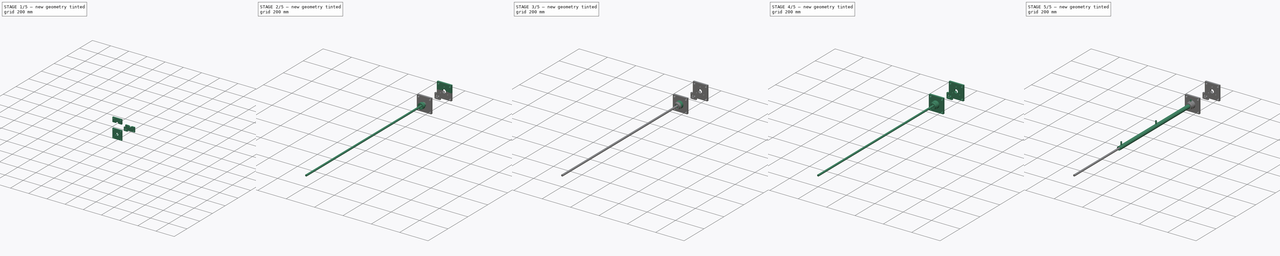
[diagram: build sequence overview — one tinted view per stage of 5, left to right]
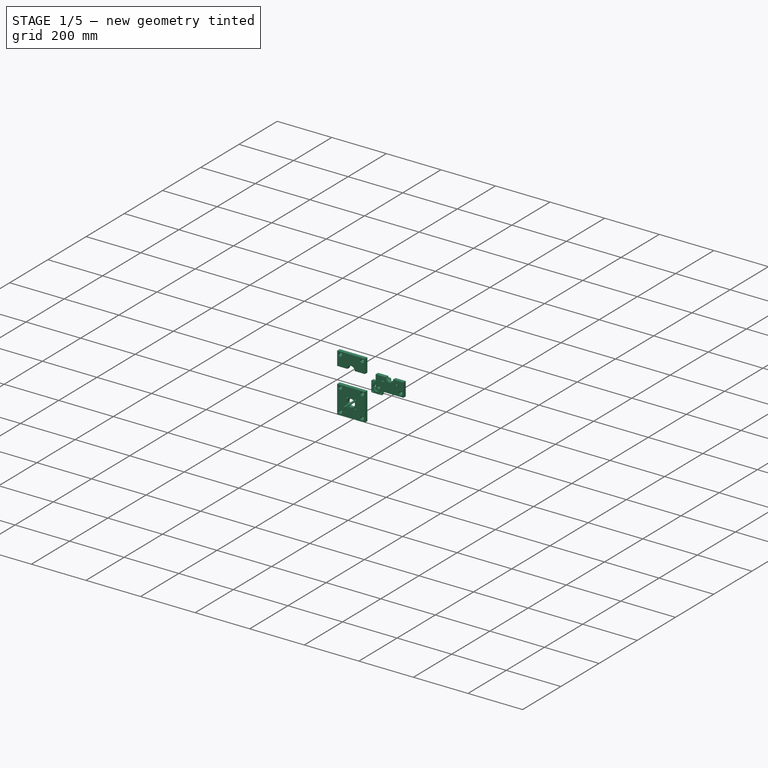
[diagram: stage 1 of 5 — iso view after this stage's code; geometry added in this stage tinted green]
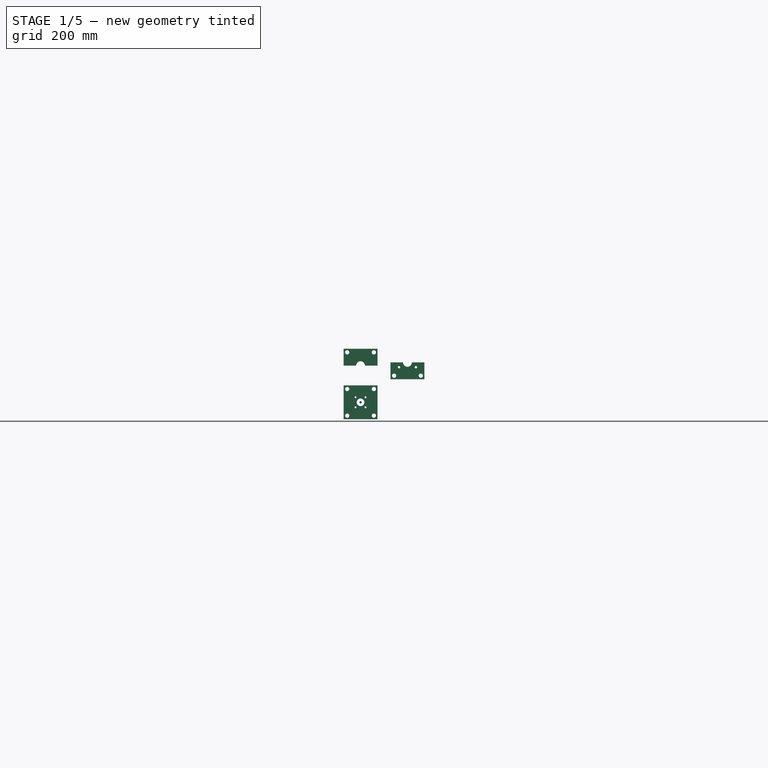
[diagram: stage 1 of 5 — front view after this stage's code; geometry added in this stage tinted green]
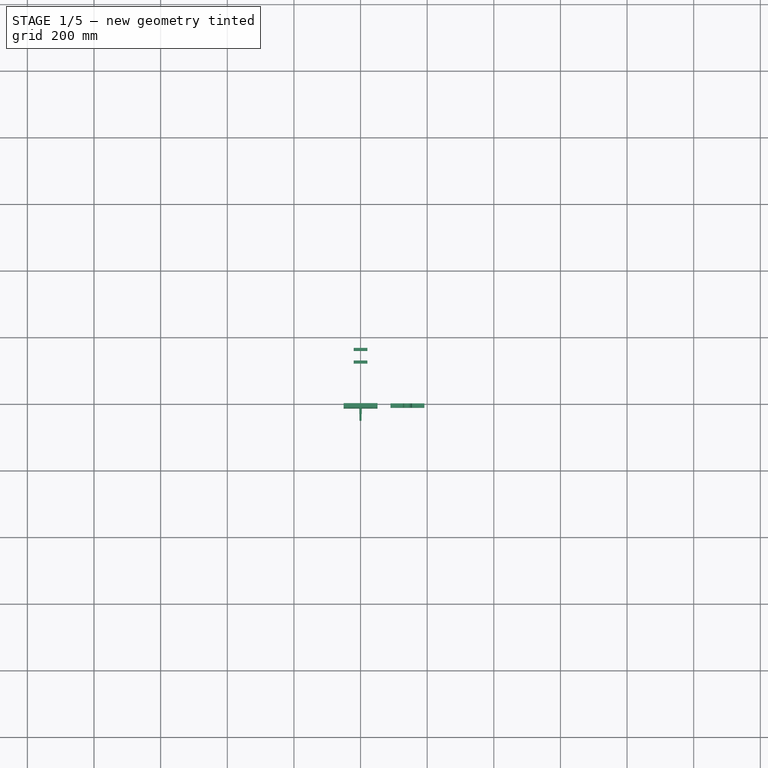
[diagram: stage 1 of 5 — top view after this stage's code; geometry added in this stage tinted green]
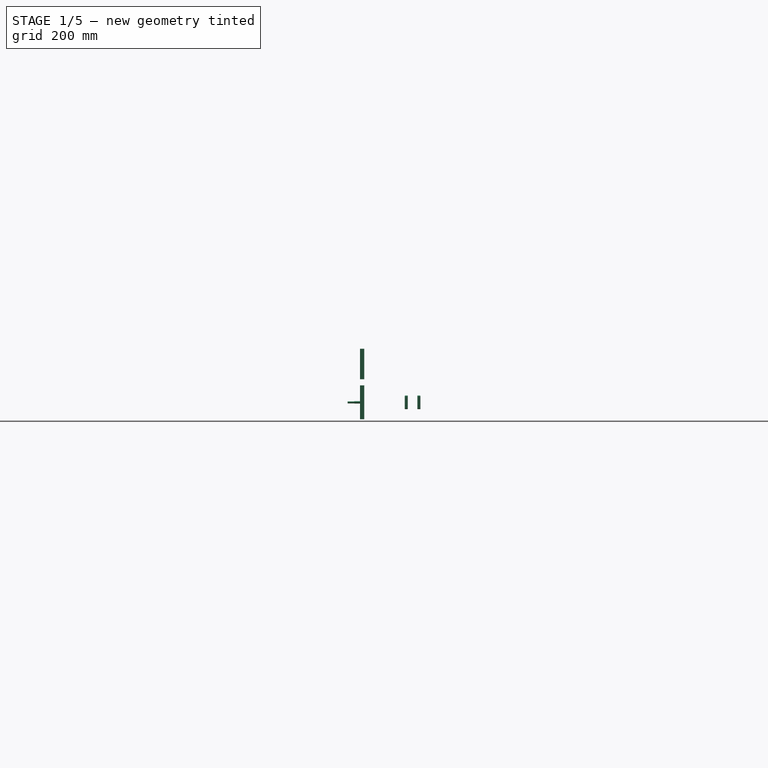
[diagram: stage 1 of 5 — right view after this stage's code; geometry added in this stage tinted green]
FCSTD DOCUMENT  (FreeCAD 0.19R24291 (Git))
Label: CEAScage
License: All rights reserved
LicenseURL: http://en.wikipedia.org/wiki/All_rights_reserved
objects: Sketcher::SketchObject×55, PartDesign::Pad×55, PartDesign::Body×55, Part::Cut×40, Part::Feature×28, App::Part×15, Part::Chamfer×6, Part::Compound2×4, Part::MultiFuse×3
note: 297 computed .brp shape members not serialized (recipe doc carries the construction recipe); baked Part::Feature solids carry a one-line shape summary decoded from their .brp

FEATURE [App::Part] Part016  label="CageBrace1"
  Group = -> [Body057,Body056,Cut048,Body060,Body058,Body059,Cut049,Cut050]
  Origin = -> Origin080
  Placement = pos=(-140.8,17,-120) rot=(0,0,1;0rad)
FEATURE [Sketcher::SketchObject] Sketch066
  FullyConstrained = true
  MapMode = 5
  Placement = pos=(0,0,0) rot=(1,0,0;1.5708rad)
  Support = -> [XZ_Plane087]
  sketch-geometry (8):
    g0: LineSegment StartX=0 StartY=59.2 StartZ=0 EndX=0 EndY=110 EndZ=0
    g1: LineSegment StartX=0 StartY=110 StartZ=0 EndX=37.475 EndY=110 EndZ=0
    g2: ArcOfCircle CenterX=50.8 CenterY=110 CenterZ=0 NormalX=0 NormalY=0 NormalZ=1 AngleXU=0 Radius=13.325 StartAngle=3.14159 EndAngle=6.28318
    g3: LineSegment StartX=64.125 StartY=110 StartZ=0 EndX=101.6 EndY=110 EndZ=0
    g4: LineSegment StartX=101.6 StartY=110 StartZ=0 EndX=101.6 EndY=59.2 EndZ=0
    g5: LineSegment StartX=101.6 StartY=59.2 StartZ=0 EndX=0 EndY=59.2 EndZ=0
    g6: Circle CenterX=10.8 CenterY=70 CenterZ=0 NormalX=0 NormalY=0 NormalZ=1 AngleXU=0 Radius=6.35
    g7: Circle CenterX=90.8 CenterY=70 CenterZ=0 NormalX=0 NormalY=0 NormalZ=1 AngleXU=0 Radius=6.35
  constraints (25):
    c: DistanceX(g5,g5) = 101.6
    c: Coincident(g5,g0)
    c: Coincident(g1,g2)
    c: Coincident(g1,g0)
    c: Coincident(g2,g3)
    c: Coincident(g3,g4)
    c: Coincident(g5,g4)
    c: Diameter(g2) = 26.65
    c: Parallel(g0,g4)
    c: DistanceY(g4,g4) = 50.8
    c: Equal(g0,g4)
    c: Equal(g3,g1)
    c: Perpendicular(g5,g0)
    c: Perpendicular(g4,g3)
    c: Vertical(g0)
    c: Perpendicular(g0,g1)
    c: DistanceX(g1,g2) = 26.65
    c: DistanceY(g-1,g0) = 59.2
    c: DistanceX(g-1,g0) = 0
    c: Diameter(g6) = 12.7
    c: Diameter(g7) = 12.7
    c: DistanceY(g6,g2) = 40
    c: DistanceY(g7,g2) = 40
    c: DistanceX(g6,g2) = 40
    c: DistanceX(g2,g7) = 40
FEATURE [Sketcher::SketchObject] Sketch067
  FullyConstrained = true
  MapMode = 5
  Placement = pos=(0,0,0) rot=(1,0,0;1.5708rad)
  Support = -> [XZ_Plane088]
  sketch-geometry (8):
    g0: LineSegment StartX=-50.8 StartY=110 StartZ=0 EndX=-50.8 EndY=160.8 EndZ=0
    g1: LineSegment StartX=-50.8 StartY=160.8 StartZ=0 EndX=50.8 EndY=160.8 EndZ=0
    g2: LineSegment StartX=50.8 StartY=160.8 StartZ=0 EndX=50.8 EndY=110 EndZ=0
    g3: LineSegment StartX=50.8 StartY=110 StartZ=0 EndX=13.325 EndY=110 EndZ=0
    g4: LineSegment StartX=-50.8 StartY=110 StartZ=0 EndX=-13.325 EndY=110 EndZ=0
    g5: ArcOfCircle CenterX=0 CenterY=110 CenterZ=0 NormalX=0 NormalY=0 NormalZ=1 AngleXU=0 Radius=13.325 StartAngle=6.28318 EndAngle=9.42478
    g6: Circle CenterX=-40 CenterY=150 CenterZ=0 NormalX=0 NormalY=0 NormalZ=1 AngleXU=0 Radius=6.35
    g7: Circle CenterX=40 CenterY=150 CenterZ=0 NormalX=0 NormalY=0 NormalZ=1 AngleXU=0 Radius=6.35
  constraints (25):
    c: Diameter(g5) = 26.65
    c: DistanceX(g1,g1) = 101.6
    c: Coincident(g0,g1)
    c: Coincident(g1,g2)
    c: Coincident(g2,g3)
    c: Coincident(g5,g3)
    c: Coincident(g5,g4)
    c: Coincident(g0,g4)
    c: DistanceY(g2,g2) = 50.8
    c: Equal(g2,g0)
    c: Horizontal(g4)
    c: Equal(g4,g3)
    c: Vertical(g0)
    c: Horizontal(g1)
    c: Perpendicular(g2,g1)
    c: Perpendicular(g2,g3)
    c: DistanceY(g-1,g0) = 110
    c: DistanceX(g4,g3) = 26.65
    c: Diameter(g6) = 12.7
    c: DistanceX(g5,g-1) = 0
    c: DistanceX(g6,g-1) = 40
    c: Distance(g6,g4) = 40
    c: Diameter(g7) = 12.7
    c: Distance(g7,g-2) = 40
    c: Distance(g7,g3) = 40
FEATURE [Sketcher::SketchObject] Sketch068
  FullyConstrained = true
  MapMode = 5
  Placement = pos=(0,0,0) rot=(1,0,0;1.5708rad)
  Support = -> [XZ_Plane089]
  sketch-geometry (1):
    g0: Circle CenterX=0 CenterY=0 CenterZ=0 NormalX=0 NormalY=0 NormalZ=1 AngleXU=0 Radius=3.57187
  constraints (2):
    c: Coincident(g0,g-1)
    c: Diameter(g0) = 7.14375
FEATURE [Sketcher::SketchObject] Sketch069
  FullyConstrained = true
  MapMode = 5
  Placement = pos=(0,0,0) rot=(1,0,0;1.5708rad)
  Support = -> [XZ_Plane090]
  sketch-geometry (1):
    g0: Circle CenterX=0 CenterY=0 CenterZ=0 NormalX=0 NormalY=0 NormalZ=1 AngleXU=0 Radius=3.57188
  constraints (2):
    c: Coincident(g0,g-1)
    c: Diameter(g0) = 7.14375
FEATURE [Sketcher::SketchObject] Sketch070
  FullyConstrained = true
  MapMode = 5
  Placement = pos=(0,0,0) rot=(1,0,0;1.5708rad)
  Support = -> [XZ_Plane092]
  sketch-geometry (1):
    g0: Circle CenterX=0 CenterY=0 CenterZ=0 NormalX=0 NormalY=0 NormalZ=1 AngleXU=0 Radius=3.57187
  constraints (2):
    c: Coincident(g0,g-1)
    c: Diameter(g0) = 7.14375
FEATURE [PartDesign::Pad] Pad066
  AllowMultiFace = false
  Direction = (1,1,1)
  Length = 12.7
  Length2 = 100
  Placement = pos=(0,0,0) rot=(1,0,0;1.5708rad)
  Profile = -> Sketch066
  Type = 0
FEATURE [PartDesign::Pad] Pad067
  Direction = (1,1,1)
  Length = 33.7
  Length2 = 100
  Placement = pos=(0,0,0) rot=(1,0,0;1.5708rad)
  Profile = -> Sketch069
  Type = 0
FEATURE [PartDesign::Pad] Pad068
  AllowMultiFace = false
  Direction = (1,1,1)
  Length = 12.7
  Length2 = 100
  Placement = pos=(0,0,0) rot=(1,0,0;1.5708rad)
  Profile = -> Sketch067
  Type = 0
FEATURE [PartDesign::Pad] Pad069
  Direction = (1,1,1)
  Length = 30
  Length2 = 100
  Placement = pos=(0,0,0) rot=(1,0,0;1.5708rad)
  Profile = -> Sketch068
  Type = 0
FEATURE [PartDesign::Pad] Pad070
  Direction = (1,1,1)
  Length = 50
  Length2 = 100
  Placement = pos=(0,0,0) rot=(1,0,0;1.5708rad)
  Profile = -> Sketch070
  Type = 0
FEATURE [Part::Cut] Cut055
  Base = -> Body069
  Tool = -> Body070
FEATURE [Part::Cut] Cut056
  Base = -> Cut055
  Placement = pos=(100,0,0) rot=(0,0,1;0rad)
  Tool = -> Body068
FEATURE [App::Part] Part018  label="CageBrace2"
  Group = -> [Body066,Body067,Cut054,Body068,Body069,Body070,Cut055,Cut056]
  Origin = -> Origin089
  Placement = pos=(-140.8,-755,-120) rot=(0,0,1;0rad)
FEATURE [Sketcher::SketchObject] Sketch
  FullyConstrained = true
  MapMode = 5
  Placement = pos=(0,0,0) rot=(1,0,0;1.5708rad)
  Support = -> [XZ_Plane093]
  sketch-geometry (13):
    g0: LineSegment StartX=-50.8 StartY=50.8 StartZ=0 EndX=50.8 EndY=50.8 EndZ=0
    g1: LineSegment StartX=50.8 StartY=50.8 StartZ=0 EndX=50.8 EndY=-50.8 EndZ=0
    g2: LineSegment StartX=50.8 StartY=-50.8 StartZ=0 EndX=-50.8 EndY=-50.8 EndZ=0
    g3: LineSegment StartX=-50.8 StartY=-50.8 StartZ=0 EndX=-50.8 EndY=50.8 EndZ=0
    g4: Circle CenterX=-40 CenterY=40 CenterZ=0 NormalX=0 NormalY=0 NormalZ=1 AngleXU=0 Radius=6.35
    g5: Circle CenterX=40 CenterY=40 CenterZ=0 NormalX=0 NormalY=0 NormalZ=1 AngleXU=0 Radius=6.35
    g6: Circle CenterX=-40 CenterY=-40 CenterZ=0 NormalX=0 NormalY=0 NormalZ=1 AngleXU=0 Radius=6.35
    g7: Circle CenterX=40 CenterY=-40 CenterZ=0 NormalX=0 NormalY=0 NormalZ=1 AngleXU=0 Radius=6.35
    g8: Circle CenterX=-15 CenterY=15 CenterZ=0 NormalX=0 NormalY=0 NormalZ=1 AngleXU=0 Radius=3
    g9: Circle CenterX=15 CenterY=15 CenterZ=0 NormalX=0 NormalY=0 NormalZ=1 AngleXU=0 Radius=3
    g10: Circle CenterX=-15 CenterY=-15 CenterZ=0 NormalX=0 NormalY=0 NormalZ=1 AngleXU=0 Radius=3
    g11: Circle CenterX=15 CenterY=-15 CenterZ=0 NormalX=0 NormalY=0 NormalZ=1 AngleXU=0 Radius=3
    g12: Circle CenterX=0 CenterY=0 CenterZ=0 NormalX=0 NormalY=0 NormalZ=1 AngleXU=0 Radius=14.2875
  constraints (38):
    c: Coincident(g0,g1)
    c: Coincident(g1,g2)
    c: Coincident(g2,g3)
    c: Coincident(g3,g0)
    c: Horizontal(g0)
    c: Horizontal(g2)
    c: Vertical(g1)
    c: Vertical(g3)
    c: DistanceY(g1,g1) = 101.6
    c: DistanceX(g0,g0) = 101.6
    c: Diameter(g4) = 12.7
    c: Diameter(g5) = 12.7
    c: Diameter(g6) = 12.7
    c: Diameter(g7) = 12.7
    c: DistanceY(g-1,g4) = 40
    c: DistanceX(g4) = -40
    c: DistanceY(g6,g4) = 80
    c: DistanceY(g7,g5) = 80
    c: DistanceX(g4,g5) = 80
    c: DistanceX(g6,g7) = 80
    c: DistanceY(g-1,g5) = 40
    c: DistanceY(g-1,g0) = 50.8
    c: DistanceX(g0,g-1) = 50.8
    c: DistanceX(g-1,g7) = 40
    c: Diameter(g8) = 6
    c: Diameter(g9) = 6
    c: Diameter(g10) = 6
    c: Diameter(g11) = 6
    c: DistanceY(g-1,g8) = 15
    c: DistanceY(g11,g9) = 30
    c: DistanceY(g10,g8) = 30
    c: DistanceY(g11,g-1) = 15
    c: DistanceX(g-1,g9) = 15
    c: DistanceX(g10,g11) = 30
    c: DistanceX(g8,g9) = 30
    c: DistanceX(g-1,g11) = 15
    c: Coincident(g12,g-1)
    c: Diameter(g12) = 28.575
FEATURE [PartDesign::Pad] Pad
  Direction = (1,1,1)
  Length = 12.7
  Length2 = 100
  Placement = pos=(0,0,0) rot=(1,0,0;1.5708rad)
  Profile = -> Sketch
  Type = 0
FEATURE [PartDesign::Body] Body
  Group = -> [Sketch,Pad]
  Origin = -> Origin093
  Tip = -> Pad
FEATURE [App::Part] Part  label="AdapterPlate1"
  Group = -> [Body]
  Origin = -> Origin
  Placement = pos=(0,150,0) rot=(0,0,1;0rad)
FEATURE [Sketcher::SketchObject] Sketch071
  FullyConstrained = true
  MapMode = 5
  Placement = pos=(0,0,0) rot=(1,0,0;1.5708rad)
  Support = -> [XZ_Plane095]
  sketch-geometry (13):
    g0: LineSegment StartX=-50.8 StartY=50.8 StartZ=0 EndX=50.8 EndY=50.8 EndZ=0
    g1: LineSegment StartX=50.8 StartY=50.8 StartZ=0 EndX=50.8 EndY=-50.8 EndZ=0
    g2: LineSegment StartX=50.8 StartY=-50.8 StartZ=0 EndX=-50.8 EndY=-50.8 EndZ=0
    g3: LineSegment StartX=-50.8 StartY=-50.8 StartZ=0 EndX=-50.8 EndY=50.8 EndZ=0
    g4: Circle CenterX=-40 CenterY=40 CenterZ=0 NormalX=0 NormalY=0 NormalZ=1 AngleXU=0 Radius=6.35
    g5: Circle CenterX=40 CenterY=40 CenterZ=0 NormalX=0 NormalY=0 NormalZ=1 AngleXU=0 Radius=6.35
    g6: Circle CenterX=-40 CenterY=-40 CenterZ=0 NormalX=0 NormalY=0 NormalZ=1 AngleXU=0 Radius=6.35
    g7: Circle CenterX=40 CenterY=-40 CenterZ=0 NormalX=0 NormalY=0 NormalZ=1 AngleXU=0 Radius=6.35
    g8: Circle CenterX=-30 CenterY=30 CenterZ=0 NormalX=0 NormalY=0 NormalZ=1 AngleXU=0 Radius=3
    g9: Circle CenterX=30 CenterY=30 CenterZ=0 NormalX=0 NormalY=0 NormalZ=1 AngleXU=0 Radius=3
    g10: Circle CenterX=-30 CenterY=-30 CenterZ=0 NormalX=0 NormalY=0 NormalZ=1 AngleXU=0 Radius=3
    g11: Circle CenterX=30 CenterY=-30 CenterZ=0 NormalX=0 NormalY=0 NormalZ=1 AngleXU=0 Radius=3
    g12: Circle CenterX=0 CenterY=0 CenterZ=0 NormalX=0 NormalY=0 NormalZ=1 AngleXU=0 Radius=31.75
  constraints (38):
    c: Coincident(g0,g1)
    c: Coincident(g1,g2)
    c: Coincident(g2,g3)
    c: Coincident(g3,g0)
    c: Horizontal(g0)
    c: Horizontal(g2)
    c: Vertical(g1)
    c: Vertical(g3)
    c: DistanceY(g1,g1) = 101.6
    c: DistanceX(g0,g0) = 101.6
    c: Diameter(g4) = 12.7
    c: Diameter(g5) = 12.7
    c: Diameter(g6) = 12.7
    c: Diameter(g7) = 12.7
    c: DistanceY(g-1,g4) = 40
    c: DistanceX(g4) = -40
    c: DistanceY(g6,g4) = 80
    c: DistanceY(g7,g5) = 80
    c: DistanceX(g4,g5) = 80
    c: DistanceX(g6,g7) = 80
    c: DistanceY(g-1,g5) = 40
    c: DistanceY(g-1,g0) = 50.8
    c: DistanceX(g0,g-1) = 50.8
    c: DistanceX(g-1,g7) = 40
    c: Diameter(g8) = 6
    c: Diameter(g9) = 6
    c: Diameter(g10) = 6
    c: Diameter(g11) = 6
    c: Coincident(g12,g-1)
    c: Diameter(g12) = 63.5
    c: DistanceY(g10,g12) = 30
    c: DistanceY(g12,g9) = 30
    c: DistanceY(g11,g9) = 60
    c: DistanceY(g10,g8) = 60
    c: DistanceX(g10,g12) = 30
    c: DistanceX(g12,g9) = 30
    c: DistanceX(g8,g9) = 60
    c: DistanceX(g10,g11) = 60
FEATURE [PartDesign::Pad] Pad071
  Direction = (1,1,1)
  Length = 12.7
  Length2 = 100
  Placement = pos=(0,0,0) rot=(1,0,0;1.5708rad)
  Profile = -> Sketch071
  Type = 0
FEATURE [PartDesign::Body] Body071
  Group = -> [Sketch071,Pad071]
  Origin = -> Origin095
  Tip = -> Pad071
FEATURE [App::Part] Part019  label="AdapterPlateLS"
  Group = -> [Body071]
  Origin = -> Origin094
  Placement = pos=(0,-1000,0) rot=(0,0,1;0rad)
FEATURE [Sketcher::SketchObject] Sketch072
  FullyConstrained = true
  MapMode = 5
  Placement = pos=(0,0,0) rot=(1,0,0;1.5708rad)
  Support = -> [XZ_Plane097]
  sketch-geometry (13):
    g0: LineSegment StartX=-50.8 StartY=50.8 StartZ=0 EndX=50.8 EndY=50.8 EndZ=0
    g1: LineSegment StartX=50.8 StartY=50.8 StartZ=0 EndX=50.8 EndY=-50.8 EndZ=0
    g2: LineSegment StartX=50.8 StartY=-50.8 StartZ=0 EndX=-50.8 EndY=-50.8 EndZ=0
    g3: LineSegment StartX=-50.8 StartY=-50.8 StartZ=0 EndX=-50.8 EndY=50.8 EndZ=0
    g4: Circle CenterX=-40 CenterY=40 CenterZ=0 NormalX=0 NormalY=0 NormalZ=1 AngleXU=0 Radius=6.35
    g5: Circle CenterX=40 CenterY=40 CenterZ=0 NormalX=0 NormalY=0 NormalZ=1 AngleXU=0 Radius=6.35
    g6: Circle CenterX=-40 CenterY=-40 CenterZ=0 NormalX=0 NormalY=0 NormalZ=1 AngleXU=0 Radius=6.35
    g7: Circle CenterX=40 CenterY=-40 CenterZ=0 NormalX=0 NormalY=0 NormalZ=1 AngleXU=0 Radius=6.35
    g8: Circle CenterX=-15 CenterY=15 CenterZ=0 NormalX=0 NormalY=0 NormalZ=1 AngleXU=0 Radius=3
    g9: Circle CenterX=15 CenterY=15 CenterZ=0 NormalX=0 NormalY=0 NormalZ=1 AngleXU=0 Radius=3
    g10: Circle CenterX=-15 CenterY=-15 CenterZ=0 NormalX=0 NormalY=0 NormalZ=1 AngleXU=0 Radius=3
    g11: Circle CenterX=15 CenterY=-15 CenterZ=0 NormalX=0 NormalY=0 NormalZ=1 AngleXU=0 Radius=3
    g12: Circle CenterX=0 CenterY=0 CenterZ=0 NormalX=0 NormalY=0 NormalZ=1 AngleXU=0 Radius=14.2875
  constraints (38):
    c: Coincident(g0,g1)
    c: Coincident(g1,g2)
    c: Coincident(g2,g3)
    c: Coincident(g3,g0)
    c: Horizontal(g0)
    c: Horizontal(g2)
    c: Vertical(g1)
    c: Vertical(g3)
    c: DistanceY(g1,g1) = 101.6
    c: DistanceX(g0,g0) = 101.6
    c: Diameter(g4) = 12.7
    c: Diameter(g5) = 12.7
    c: Diameter(g6) = 12.7
    c: Diameter(g7) = 12.7
    c: DistanceY(g-1,g4) = 40
    c: DistanceX(g4) = -40
    c: DistanceY(g6,g4) = 80
    c: DistanceY(g7,g5) = 80
    c: DistanceX(g4,g5) = 80
    c: DistanceX(g6,g7) = 80
    c: DistanceY(g-1,g5) = 40
    c: DistanceY(g-1,g0) = 50.8
    c: DistanceX(g0,g-1) = 50.8
    c: DistanceX(g-1,g7) = 40
    c: Diameter(g8) = 6
    c: Diameter(g9) = 6
    c: Diameter(g10) = 6
    c: Diameter(g11) = 6
    c: DistanceY(g-1,g8) = 15
    c: DistanceY(g11,g9) = 30
    c: DistanceY(g10,g8) = 30
    c: DistanceY(g11,g-1) = 15
    c: DistanceX(g-1,g9) = 15
    c: DistanceX(g10,g11) = 30
    c: DistanceX(g8,g9) = 30
    c: DistanceX(g-1,g11) = 15
    c: Coincident(g12,g-1)
    c: Diameter(g12) = 28.575
FEATURE [PartDesign::Pad] Pad072
  Direction = (1,1,1)
  Length = 12.7
  Length2 = 100
  Placement = pos=(0,0,0) rot=(1,0,0;1.5708rad)
  Profile = -> Sketch072
  Type = 0
FEATURE [PartDesign::Body] Body072
  Group = -> [Sketch072,Pad072]
  Origin = -> Origin097
  Tip = -> Pad072
FEATURE [App::Part] Part020  label="AdapterPlate2"
  Group = -> [Body072]
  Origin = -> Origin096
  Placement = pos=(0,-890,0) rot=(0,0,1;0rad)
FEATURE [Sketcher::SketchObject] Sketch073
  FullyConstrained = true
  MapMode = 5
  Placement = pos=(0,0,0) rot=(1,0,0;1.5708rad)
  Support = -> [XZ_Plane099]
  sketch-geometry (1):
    g0: Circle CenterX=0 CenterY=0 CenterZ=0 NormalX=0 NormalY=0 NormalZ=1 AngleXU=0 Radius=3
  constraints (2):
    c: Coincident(g0,g-1)
    c: Diameter(g0) = 6
FEATURE [PartDesign::Pad] Pad073
  Direction = (1,1,1)
  Length = 50
  Length2 = 100
  Placement = pos=(0,0,0) rot=(1,0,0;1.5708rad)
  Profile = -> Sketch073
  Type = 0
FEATURE [PartDesign::Body] Body073
  Group = -> [Sketch073,Pad073]
  Origin = -> Origin099
  Placement = pos=(15,0,15) rot=(0,0,1;0rad)
  Tip = -> Pad073
FEATURE [Sketcher::SketchObject] Sketch074
  FullyConstrained = true
  MapMode = 5
  Placement = pos=(0,0,0) rot=(1,0,0;1.5708rad)
  Support = -> [XZ_Plane100]
  sketch-geometry (1):
    g0: Circle CenterX=0 CenterY=0 CenterZ=0 NormalX=0 NormalY=0 NormalZ=1 AngleXU=0 Radius=3
  constraints (2):
    c: Coincident(g0,g-1)
    c: Diameter(g0) = 6
FEATURE [PartDesign::Pad] Pad074
  Direction = (1,1,1)
  Length = 50
  Length2 = 100
  Placement = pos=(0,0,0) rot=(1,0,0;1.5708rad)
  Profile = -> Sketch074
  Type = 0
FEATURE [PartDesign::Body] Body074
  Group = -> [Sketch074,Pad074]
  Origin = -> Origin100
  Placement = pos=(15,0,-15) rot=(0,0,1;0rad)
  Tip = -> Pad074
FEATURE [Sketcher::SketchObject] Sketch075
  FullyConstrained = true
  MapMode = 5
  Placement = pos=(0,0,0) rot=(1,0,0;1.5708rad)
  Support = -> [XZ_Plane101]
  sketch-geometry (1):
    g0: Circle CenterX=0 CenterY=0 CenterZ=0 NormalX=0 NormalY=0 NormalZ=1 AngleXU=0 Radius=3
  constraints (2):
    c: Coincident(g0,g-1)
    c: Diameter(g0) = 6
FEATURE [PartDesign::Pad] Pad075
  Direction = (1,1,1)
  Length = 50
  Length2 = 100
  Placement = pos=(0,0,0) rot=(1,0,0;1.5708rad)
  Profile = -> Sketch075
  Type = 0
FEATURE [PartDesign::Body] Body075
  Group = -> [Sketch075,Pad075]
  Origin = -> Origin101
  Placement = pos=(-15,0,15) rot=(0,0,1;0rad)
  Tip = -> Pad075
FEATURE [Sketcher::SketchObject] Sketch076
  FullyConstrained = true
  MapMode = 5
  Placement = pos=(0,0,0) rot=(1,0,0;1.5708rad)
  Support = -> [XZ_Plane102]
  sketch-geometry (1):
    g0: Circle CenterX=0 CenterY=0 CenterZ=0 NormalX=0 NormalY=0 NormalZ=1 AngleXU=0 Radius=3
  constraints (2):
    c: Coincident(g0,g-1)
    c: Diameter(g0) = 6
FEATURE [PartDesign::Pad] Pad076
  Direction = (1,1,1)
  Length = 50
  Length2 = 100
  Placement = pos=(0,0,0) rot=(1,0,0;1.5708rad)
  Profile = -> Sketch076
  Type = 0
FEATURE [PartDesign::Body] Body076
  Group = -> [Sketch076,Pad076]
  Origin = -> Origin102
  Placement = pos=(-15,0,-15) rot=(0,0,1;0rad)
  Tip = -> Pad076
FEATURE [App::Part] Part021  label="FrameFiber"
  Group = -> [Body073,Body074,Body075,Body076]
  Origin = -> Origin098
  Placement = pos=(0,170,0) rot=(0,0,1;0rad)
FEATURE [Part::Feature] Solid
  shape: bbox 40.64 x 40.64 x 8.89 mm, 345 faces (baked)
FEATURE [Part::Feature] Solid001 .. Solid004  x4 (patterned run collapsed; names and placements below)
  shape: bbox 5.001 x 4.001 x 4.001 mm, 29 faces (baked)
FEATURE [Part::Feature] Solid005
  shape: bbox 26.29 x 26.29 x 2.032 mm, 29 faces (baked)
FEATURE [Part::Feature] Solid006
  shape: bbox 26.29 x 26.29 x 2.032 mm, 29 faces (baked)
FEATURE [Part::Compound2] Compound  label="TTN192009-E0W"
  Links = -> [Solid,Solid001,Solid002,Solid003,Solid004,Solid005,Solid006]
  Placement = pos=(0,164,0) rot=(1,0,0;1.5708rad)
FEATURE [Part::Feature] Solid007
  shape: bbox 26.29 x 26.29 x 2.032 mm, 29 faces (baked)
FEATURE [Part::Feature] Solid008
  shape: bbox 26.29 x 26.29 x 2.032 mm, 29 faces (baked)
FEATURE [Part::Feature] Solid009
  shape: bbox 5.001 x 4.001 x 4.001 mm, 29 faces (baked)
FEATURE [Part::Feature] Solid010
  shape: bbox 5.001 x 4.001 x 4.001 mm, 29 faces (baked)
FEATURE [Part::Feature] Solid011
  shape: bbox 40.64 x 40.64 x 8.89 mm, 345 faces (baked)
FEATURE [Part::Feature] Solid012
  shape: bbox 5.001 x 4.001 x 4.001 mm, 29 faces (baked)
FEATURE [Part::Feature] Solid013
  shape: bbox 5.001 x 4.001 x 4.001 mm, 29 faces (baked)
FEATURE [Part::Compound2] Compound001  label="TTN192009-E0W001"
  Links = -> [Solid011,Solid010,Solid012,Solid009,Solid013,Solid007,Solid008]
  Placement = pos=(0,126,0) rot=(1,0,0;1.5708rad)
FEATURE [App::Part] Part022  label="CP33-Fiber"
  Group = -> [Solid005,Solid006,Solid003,Solid001,Solid,Solid002,Solid004,Compound,Solid008,Solid011,Solid012,Solid013,Solid010,Solid007,Solid009,Compound001]
  Origin = -> Origin103
FEATURE [Sketcher::SketchObject] Sketch077
  FullyConstrained = true
  MapMode = 5
  Placement = pos=(0,0,0) rot=(1,0,0;1.5708rad)
  Support = -> [XZ_Plane106]
  sketch-geometry (1):
    g0: Circle CenterX=0 CenterY=0 CenterZ=0 NormalX=0 NormalY=0 NormalZ=1 AngleXU=0 Radius=3
  constraints (2):
    c: Coincident(g0,g-1)
    c: Diameter(g0) = 6
FEATURE [PartDesign::Pad] Pad077
  Direction = (1,1,1)
  Length = 50
  Length2 = 100
  Placement = pos=(0,0,0) rot=(1,0,0;1.5708rad)
  Profile = -> Sketch077
  Type = 0
FEATURE [Sketcher::SketchObject] Sketch078
  FullyConstrained = true
  MapMode = 5
  Placement = pos=(0,0,0) rot=(1,0,0;1.5708rad)
  Support = -> [XZ_Plane108]
  sketch-geometry (1):
    g0: Circle CenterX=0 CenterY=0 CenterZ=0 NormalX=0 NormalY=0 NormalZ=1 AngleXU=0 Radius=3
  constraints (2):
    c: Coincident(g0,g-1)
    c: Diameter(g0) = 6
FEATURE [Sketcher::SketchObject] Sketch079
  FullyConstrained = true
  MapMode = 5
  Placement = pos=(0,0,0) rot=(1,0,0;1.5708rad)
  Support = -> [XZ_Plane109]
  sketch-geometry (1):
    g0: Circle CenterX=0 CenterY=0 CenterZ=0 NormalX=0 NormalY=0 NormalZ=1 AngleXU=0 Radius=3
  constraints (2):
    c: Coincident(g0,g-1)
    c: Diameter(g0) = 6
FEATURE [Sketcher::SketchObject] Sketch080
  FullyConstrained = true
  MapMode = 5
  Placement = pos=(0,0,0) rot=(1,0,0;1.5708rad)
  Support = -> [XZ_Plane105]
  sketch-geometry (1):
    g0: Circle CenterX=0 CenterY=0 CenterZ=0 NormalX=0 NormalY=0 NormalZ=1 AngleXU=0 Radius=3
  constraints (2):
    c: Coincident(g0,g-1)
    c: Diameter(g0) = 6
FEATURE [Part::Feature] Solid014
  shape: bbox 26.29 x 26.29 x 2.032 mm, 29 faces (baked)
FEATURE [Part::Feature] Solid015
  shape: bbox 40.64 x 40.64 x 8.89 mm, 345 faces (baked)
FEATURE [Part::Feature] Solid016
  shape: bbox 5.001 x 4.001 x 4.001 mm, 29 faces (baked)
FEATURE [Part::Feature] Solid017
  shape: bbox 5.001 x 4.001 x 4.001 mm, 29 faces (baked)
FEATURE [Part::Feature] Solid018
  shape: bbox 5.001 x 4.001 x 4.001 mm, 29 faces (baked)
FEATURE [Part::Feature] Solid019
  shape: bbox 26.29 x 26.29 x 2.032 mm, 29 faces (baked)
FEATURE [Part::Feature] Solid020
  shape: bbox 5.001 x 4.001 x 4.001 mm, 29 faces (baked)
FEATURE [PartDesign::Pad] Pad078
  Direction = (1,1,1)
  Length = 50
  Length2 = 100
  Placement = pos=(0,0,0) rot=(1,0,0;1.5708rad)
  Profile = -> Sketch078
  Type = 0
FEATURE [PartDesign::Pad] Pad079
  Direction = (1,1,1)
  Length = 50
  Length2 = 100
  Placement = pos=(0,0,0) rot=(1,0,0;1.5708rad)
  Profile = -> Sketch079
  Type = 0
FEATURE [PartDesign::Pad] Pad080
  Direction = (1,1,1)
  Length = 50
  Length2 = 100
  Placement = pos=(0,0,0) rot=(1,0,0;1.5708rad)
  Profile = -> Sketch080
  Type = 0
FEATURE [Part::Feature] Solid021
  shape: bbox 26.29 x 26.29 x 2.032 mm, 29 faces (baked)
FEATURE [Part::Feature] Solid022
  shape: bbox 26.29 x 26.29 x 2.032 mm, 29 faces (baked)
FEATURE [PartDesign::Body] Body077
  Group = -> [Sketch080,Pad080]
  Origin = -> Origin108
  Placement = pos=(15,0,15) rot=(0,0,1;0rad)
  Tip = -> Pad080
FEATURE [PartDesign::Body] Body078
  Group = -> [Sketch078,Pad078]
  Origin = -> Origin104
  Placement = pos=(15,0,-15) rot=(0,0,1;0rad)
  Tip = -> Pad078
FEATURE [PartDesign::Body] Body079
  Group = -> [Sketch079,Pad079]
  Origin = -> Origin106
  Placement = pos=(-15,0,15) rot=(0,0,1;0rad)
  Tip = -> Pad079
FEATURE [PartDesign::Body] Body080
  Group = -> [Sketch077,Pad077]
  Origin = -> Origin107
  Placement = pos=(-15,0,-15) rot=(0,0,1;0rad)
  Tip = -> Pad077
FEATURE [Part::Feature] Solid023
  shape: bbox 5.001 x 4.001 x 4.001 mm, 29 faces (baked)
FEATURE [Part::Feature] Solid024
  shape: bbox 5.001 x 4.001 x 4.001 mm, 29 faces (baked)
FEATURE [Part::Feature] Solid025
  shape: bbox 40.64 x 40.64 x 8.89 mm, 345 faces (baked)
FEATURE [Part::Feature] Solid026
  shape: bbox 5.001 x 4.001 x 4.001 mm, 29 faces (baked)
FEATURE [Part::Feature] Solid027
  shape: bbox 5.001 x 4.001 x 4.001 mm, 29 faces (baked)
FEATURE [Part::Compound2] Compound002  label="TTN192009-E0W002"
  Links = -> [Solid025,Solid024,Solid026,Solid023,Solid027,Solid021,Solid022]
  Placement = pos=(0,164,0) rot=(1,0,0;1.5708rad)
FEATURE [App::Part] Part024  label="FrameLenses"
  Group = -> [Body077,Body078,Body079,Body080]
  Origin = -> Origin109
  Placement = pos=(0,-870,0) rot=(0,0,1;0rad)
FEATURE [Part::Compound2] Compound003  label="TTN192009-E0W003"
  Links = -> [Solid015,Solid018,Solid016,Solid020,Solid017,Solid019,Solid014]
  Placement = pos=(0,126,0) rot=(1,0,0;1.5708rad)
FEATURE [App::Part] Part023  label="CP33-Lenses"
  Group = -> [Solid021,Solid022,Solid023,Solid024,Solid025,Solid026,Solid027,Compound002,Solid014,Solid015,Solid016,Solid017,Solid018,Solid019,Solid020,Compound003]
  Origin = -> Origin105
  Placement = pos=(0,-1040,0) rot=(0,0,1;0rad)
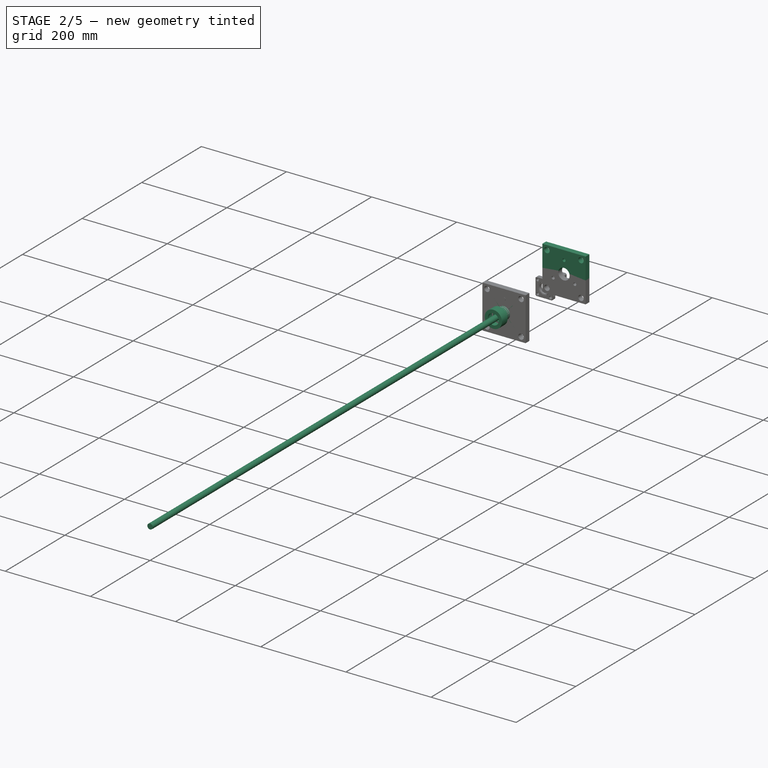
[diagram: stage 2 of 5 — iso view after this stage's code; geometry added in this stage tinted green]
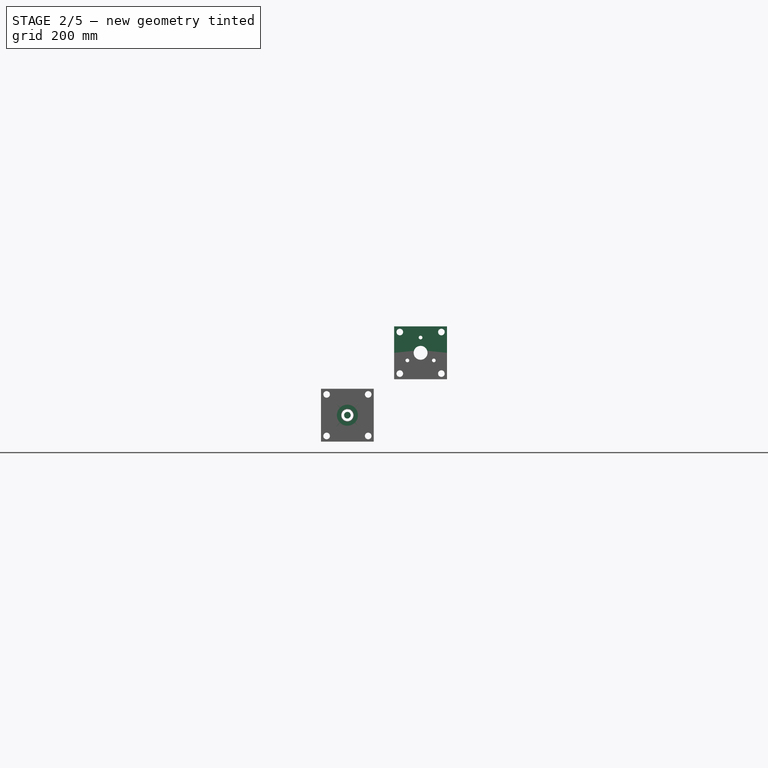
[diagram: stage 2 of 5 — front view after this stage's code; geometry added in this stage tinted green]
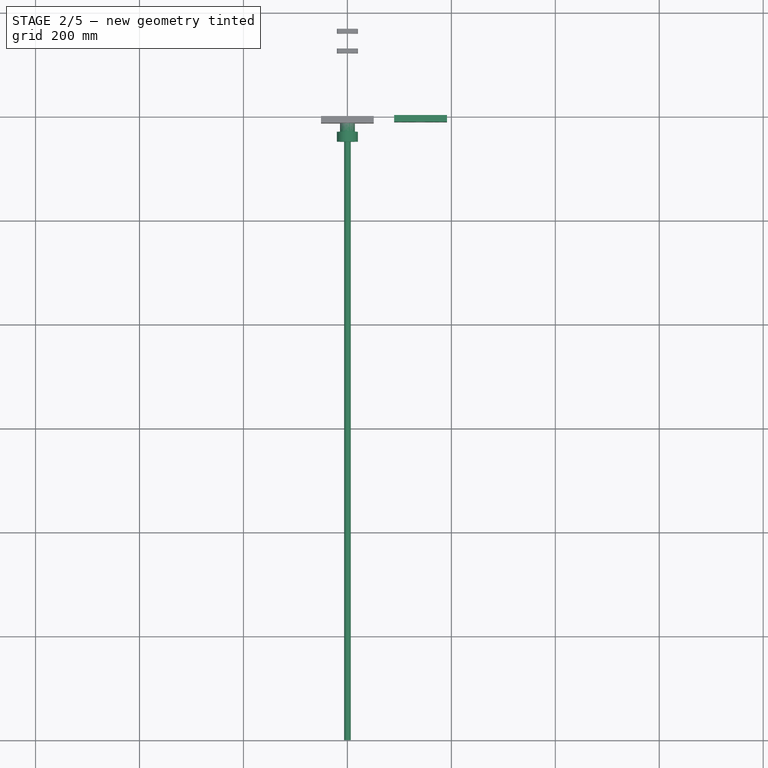
[diagram: stage 2 of 5 — top view after this stage's code; geometry added in this stage tinted green]
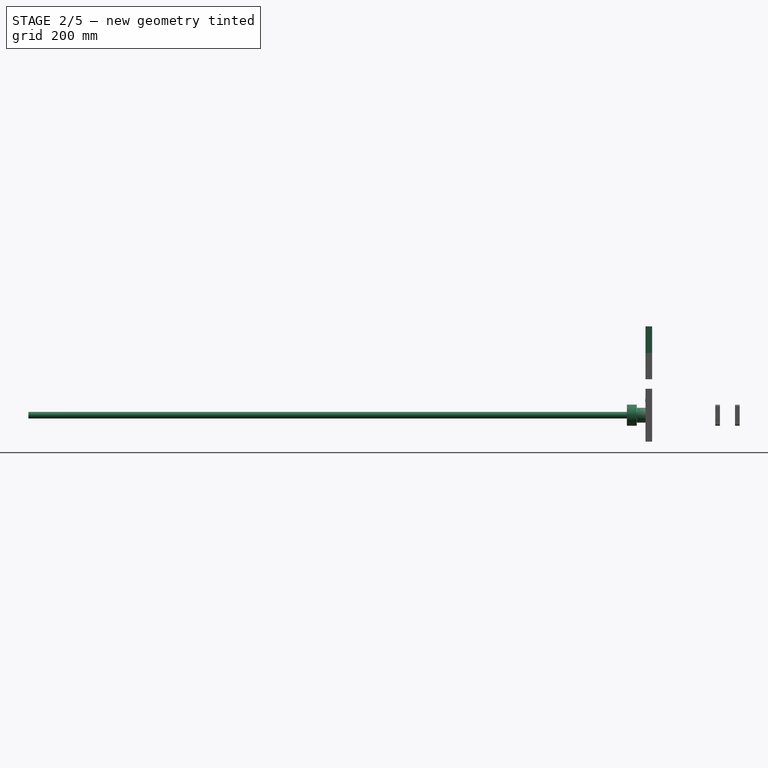
[diagram: stage 2 of 5 — right view after this stage's code; geometry added in this stage tinted green]
FEATURE [App::Part] Part013  label="CRDmount(simple)2"
  Group = -> [Body047,Body049,Cut041,Cut042,Cut043,Cut044,Cut045,Cut046,Chamfer005,Body050,Chamfer004,Body048,Cut047,Chamfer003]
  Origin = -> Origin065
  Placement = pos=(0,-780,0) rot=(0,0,1;0rad)
FEATURE [Sketcher::SketchObject] Sketch041
  FullyConstrained = true
  MapMode = 5
  Placement = pos=(0,0,0) rot=(1,0,0;1.5708rad)
  Support = -> [XZ_Plane050]
  sketch-geometry (1):
    g0: Circle CenterX=0 CenterY=29.3687 CenterZ=0 NormalX=0 NormalY=0 NormalZ=1 AngleXU=0 Radius=3.57187
  constraints (3):
    c: PointOnObject(g0,g-2)
    c: DistanceY(g-1,g0) = 29.3687
    c: Diameter(g0) = 7.14375
FEATURE [PartDesign::Pad] Pad038
  Direction = (1,1,1)
  Length = 13
  Length2 = 100
  Placement = pos=(0,0,0) rot=(1,0,0;1.5708rad)
  Profile = -> Sketch041
  Type = 0
FEATURE [PartDesign::Body] Body040
  Group = -> [Sketch041,Pad038]
  Origin = -> Origin053
  Tip = -> Pad038
FEATURE [Sketcher::SketchObject] Sketch040
  FullyConstrained = true
  MapMode = 5
  Placement = pos=(0,0,0) rot=(1,0,0;1.5708rad)
  Support = -> [XZ_Plane049]
  sketch-geometry (2):
    g0: Circle CenterX=0 CenterY=0 CenterZ=0 NormalX=0 NormalY=0 NormalZ=1 AngleXU=0 Radius=34.925
    g1: Circle CenterX=0 CenterY=0 CenterZ=0 NormalX=0 NormalY=0 NormalZ=1 AngleXU=0 Radius=14.2875
  constraints (4):
    c: Coincident(g0,g-1)
    c: Coincident(g1,g0)
    c: Diameter(g1) = 28.575
    c: Diameter(g0) = 69.85
FEATURE [PartDesign::Pad] Pad037
  Direction = (1,1,1)
  Length = 12.7
  Length2 = 100
  Placement = pos=(0,0,0) rot=(1,0,0;1.5708rad)
  Profile = -> Sketch040
  Type = 0
FEATURE [Sketcher::SketchObject] Sketch039
  FullyConstrained = true
  MapMode = 5
  Placement = pos=(0,0,0) rot=(1,0,0;1.5708rad)
  Support = -> [XZ_Plane051]
  sketch-geometry (2):
    g0: Circle CenterX=0 CenterY=0 CenterZ=0 NormalX=0 NormalY=0 NormalZ=1 AngleXU=0 Radius=12.7
    g1: Circle CenterX=0 CenterY=0 CenterZ=0 NormalX=0 NormalY=0 NormalZ=1 AngleXU=0 Radius=14.2875
  constraints (4):
    c: Coincident(g0,g-1)
    c: Coincident(g1,g0)
    c: Diameter(g0) = 25.4
    c: Diameter(g1) = 28.575
FEATURE [PartDesign::Pad] Pad036
  Direction = (1,1,1)
  Length = 29.21
  Length2 = 100
  Placement = pos=(0,0,0) rot=(1,0,0;1.5708rad)
  Profile = -> Sketch039
  Type = 0
FEATURE [PartDesign::Body] Body036
  Group = -> [Sketch039,Pad036]
  Origin = -> Origin054
  Placement = pos=(0,-0.16,0) rot=(0,0,1;0rad)
  Tip = -> Pad036
FEATURE [Sketcher::SketchObject] Sketch037
  FullyConstrained = true
  MapMode = 5
  Placement = pos=(0,0,0) rot=(1,0,0;1.5708rad)
  Support = -> [XZ_Plane052]
  sketch-geometry (2):
    g0: Circle CenterX=0 CenterY=0 CenterZ=0 NormalX=0 NormalY=0 NormalZ=1 AngleXU=0 Radius=12.7
    g1: Circle CenterX=0 CenterY=0 CenterZ=0 NormalX=0 NormalY=0 NormalZ=1 AngleXU=0 Radius=16.6687
  constraints (4):
    c: Coincident(g0,g-1)
    c: Coincident(g1,g0)
    c: Diameter(g0) = 25.4
    c: Diameter(g1) = 33.3375
FEATURE [PartDesign::Pad] Pad041
  Direction = (1,1,1)
  Length = 12.7
  Length2 = 100
  Placement = pos=(0,0,0) rot=(1,0,0;1.5708rad)
  Profile = -> Sketch037
  Type = 0
FEATURE [Sketcher::SketchObject] Sketch038
  FullyConstrained = true
  MapMode = 5
  Placement = pos=(0,0,0) rot=(1,0,0;1.5708rad)
  Support = -> [XZ_Plane053]
  sketch-geometry (2):
    g0: Circle CenterX=0 CenterY=0 CenterZ=0 NormalX=0 NormalY=0 NormalZ=1 AngleXU=0 Radius=12.7
    g1: Circle CenterX=0 CenterY=0 CenterZ=0 NormalX=0 NormalY=0 NormalZ=1 AngleXU=0 Radius=16.6687
  constraints (4):
    c: Coincident(g0,g-1)
    c: Coincident(g1,g0)
    c: Diameter(g0) = 25.4
    c: Diameter(g1) = 33.3375
FEATURE [PartDesign::Pad] Pad039
  Direction = (1,1,1)
  Length = 3.175
  Length2 = 100
  Placement = pos=(0,0,0) rot=(1,0,0;1.5708rad)
  Profile = -> Sketch038
  Type = 0
FEATURE [PartDesign::Body] Body041
  Group = -> [Sketch038,Pad039]
  Origin = -> Origin049
  Placement = pos=(0,-42.07,0) rot=(0,0,1;0rad)
  Tip = -> Pad039
FEATURE [Sketcher::SketchObject] Sketch036
  FullyConstrained = true
  MapMode = 5
  Placement = pos=(0,0,0) rot=(1,0,0;1.5708rad)
  Support = -> [XZ_Plane055]
  sketch-geometry (2):
    g0: Circle CenterX=0 CenterY=0 CenterZ=0 NormalX=0 NormalY=0 NormalZ=1 AngleXU=0 Radius=20.2406
    g1: Circle CenterX=0 CenterY=0 CenterZ=0 NormalX=0 NormalY=0 NormalZ=1 AngleXU=0 Radius=12.7
  constraints (4):
    c: Coincident(g0,g-1)
    c: Coincident(g1,g0)
    c: Diameter(g0) = 40.4813
    c: Diameter(g1) = 25.4
FEATURE [PartDesign::Pad] Pad042
  Direction = (1,1,1)
  Length = 19.05
  Length2 = 100
  Placement = pos=(0,0,0) rot=(1,0,0;1.5708rad)
  Profile = -> Sketch036
  Type = 0
FEATURE [PartDesign::Body] Body038
  Group = -> [Sketch036,Pad042]
  Origin = -> Origin050
  Tip = -> Pad042
FEATURE [Sketcher::SketchObject] Sketch042
  FullyConstrained = true
  MapMode = 5
  Placement = pos=(0,0,0) rot=(1,0,0;1.5708rad)
  Support = -> [XZ_Plane054]
  sketch-geometry (1):
    g0: Circle CenterX=0 CenterY=0 CenterZ=0 NormalX=0 NormalY=0 NormalZ=1 AngleXU=0 Radius=16.6687
  constraints (2):
    c: Coincident(g0,g-1)
    c: Diameter(g0) = 33.3375
FEATURE [PartDesign::Pad] Pad040
  Direction = (1,1,1)
  Length = 15.875
  Length2 = 100
  Placement = pos=(0,0,0) rot=(1,0,0;1.5708rad)
  Profile = -> Sketch042
  Type = 0
FEATURE [PartDesign::Body] Body042
  Group = -> [Sketch042,Pad040]
  Origin = -> Origin048
  Tip = -> Pad040
FEATURE [Part::Cut] Cut033
  Base = -> Body038
  Placement = pos=(0,-29.37,0) rot=(0,0,1;0rad)
  Tool = -> Body042
FEATURE [App::Part] Part010  label="CFQuick2"
  Group = -> [Body040,Cut029,Body039,Cut028,Cut031,Cut032,Cut027,Cut030,Body036,Body037,Fusion002,Body041,Body038,Body042,Cut033]
  Origin = -> Origin051
  Placement = pos=(0,-780,0) rot=(1,0,0;3.14159rad)
FEATURE [Sketcher::SketchObject] Sketch052
  FullyConstrained = true
  MapMode = 5
  Placement = pos=(0,0,0) rot=(1,0,0;1.5708rad)
  Support = -> [XZ_Plane071]
  sketch-geometry (1):
    g0: Circle CenterX=0 CenterY=0 CenterZ=0 NormalX=0 NormalY=0 NormalZ=1 AngleXU=0 Radius=6.35
  constraints (2):
    c: Coincident(g0,g-1)
    c: Diameter(g0) = 12.7
FEATURE [PartDesign::Pad] Pad052
  Direction = (1,1,1)
  Length = 1200
  Length2 = 100
  Placement = pos=(0,0,0) rot=(1,0,0;1.5708rad)
  Profile = -> Sketch052
  Type = 0
FEATURE [PartDesign::Body] Body052
  Group = -> [Sketch052,Pad052]
  Origin = -> Origin071
  Placement = pos=(40,0,40) rot=(0,0,1;0rad)
  Tip = -> Pad052
FEATURE [Sketcher::SketchObject] Sketch053
  FullyConstrained = true
  MapMode = 5
  Placement = pos=(0,0,0) rot=(1,0,0;1.5708rad)
  Support = -> [XZ_Plane072]
  sketch-geometry (1):
    g0: Circle CenterX=0 CenterY=0 CenterZ=0 NormalX=0 NormalY=0 NormalZ=1 AngleXU=0 Radius=6.35
  constraints (2):
    c: Coincident(g0,g-1)
    c: Diameter(g0) = 12.7
FEATURE [PartDesign::Pad] Pad053
  Direction = (1,1,1)
  Length = 1200
  Length2 = 100
  Placement = pos=(0,0,0) rot=(1,0,0;1.5708rad)
  Profile = -> Sketch053
  Type = 0
FEATURE [PartDesign::Body] Body053
  Group = -> [Sketch053,Pad053]
  Origin = -> Origin072
  Placement = pos=(-40,0,40) rot=(0,0,1;0rad)
  Tip = -> Pad053
FEATURE [Sketcher::SketchObject] Sketch054
  FullyConstrained = true
  MapMode = 5
  Placement = pos=(0,0,0) rot=(1,0,0;1.5708rad)
  Support = -> [XZ_Plane073]
  sketch-geometry (1):
    g0: Circle CenterX=0 CenterY=0 CenterZ=0 NormalX=0 NormalY=0 NormalZ=1 AngleXU=0 Radius=6.35
  constraints (2):
    c: Coincident(g0,g-1)
    c: Diameter(g0) = 12.7
FEATURE [PartDesign::Pad] Pad054
  Direction = (1,1,1)
  Length = 1200
  Length2 = 100
  Placement = pos=(0,0,0) rot=(1,0,0;1.5708rad)
  Profile = -> Sketch054
  Type = 0
FEATURE [PartDesign::Body] Body054
  Group = -> [Sketch054,Pad054]
  Origin = -> Origin073
  Placement = pos=(40,0,-40) rot=(0,0,1;0rad)
  Tip = -> Pad054
FEATURE [Sketcher::SketchObject] Sketch055
  FullyConstrained = true
  MapMode = 5
  Placement = pos=(0,0,0) rot=(1,0,0;1.5708rad)
  Support = -> [XZ_Plane074]
  sketch-geometry (1):
    g0: Circle CenterX=0 CenterY=0 CenterZ=0 NormalX=0 NormalY=0 NormalZ=1 AngleXU=0 Radius=6.35
  constraints (2):
    c: Coincident(g0,g-1)
    c: Diameter(g0) = 12.7
FEATURE [PartDesign::Pad] Pad055
  Direction = (1,1,1)
  Length = 1200
  Length2 = 100
  Placement = pos=(0,0,0) rot=(1,0,0;1.5708rad)
  Profile = -> Sketch055
  Type = 0
FEATURE [PartDesign::Body] Body055
  Group = -> [Sketch055,Pad055]
  Origin = -> Origin074
  Placement = pos=(-40,0,-40) rot=(0,0,1;0rad)
  Tip = -> Pad055
FEATURE [App::Part] Part015  label="Frame"
  Group = -> [Body052,Body053,Body054,Body055]
  Origin = -> Origin070
  Placement = pos=(0,170,0) rot=(0,0,1;0rad)
FEATURE [Sketcher::SketchObject] Sketch056
  FullyConstrained = true
  MapMode = 5
  Placement = pos=(0,0,0) rot=(1,0,0;1.5708rad)
  Support = -> [XZ_Plane075]
  sketch-geometry (8):
    g0: LineSegment StartX=-50.8 StartY=110 StartZ=0 EndX=-50.8 EndY=160.8 EndZ=0
    g1: LineSegment StartX=-50.8 StartY=160.8 StartZ=0 EndX=50.8 EndY=160.8 EndZ=0
    g2: LineSegment StartX=50.8 StartY=160.8 StartZ=0 EndX=50.8 EndY=110 EndZ=0
    g3: LineSegment StartX=50.8 StartY=110 StartZ=0 EndX=13.325 EndY=110 EndZ=0
    g4: LineSegment StartX=-50.8 StartY=110 StartZ=0 EndX=-13.325 EndY=110 EndZ=0
    g5: ArcOfCircle CenterX=0 CenterY=110 CenterZ=0 NormalX=0 NormalY=0 NormalZ=1 AngleXU=0 Radius=13.325 StartAngle=2.59042e-06 EndAngle=3.14159
    g6: Circle CenterX=-40 CenterY=150 CenterZ=0 NormalX=0 NormalY=0 NormalZ=1 AngleXU=0 Radius=6.35
    g7: Circle CenterX=40 CenterY=150 CenterZ=0 NormalX=0 NormalY=0 NormalZ=1 AngleXU=0 Radius=6.35
  constraints (25):
    c: Diameter(g5) = 26.65
    c: DistanceX(g1,g1) = 101.6
    c: Coincident(g0,g1)
    c: Coincident(g1,g2)
    c: Coincident(g2,g3)
    c: Coincident(g5,g3)
    c: Coincident(g5,g4)
    c: Coincident(g0,g4)
    c: DistanceY(g2,g2) = 50.8
    c: Equal(g2,g0)
    c: Horizontal(g4)
    c: Equal(g4,g3)
    c: Vertical(g0)
    c: Horizontal(g1)
    c: Perpendicular(g2,g1)
    c: Perpendicular(g2,g3)
    c: DistanceY(g-1,g0) = 110
    c: DistanceX(g4,g3) = 26.65
    c: Diameter(g6) = 12.7
    c: DistanceX(g5,g-1) = 0
    c: DistanceX(g6,g-1) = 40
    c: Distance(g6,g4) = 40
    c: Diameter(g7) = 12.7
    c: Distance(g7,g-2) = 40
    c: Distance(g7,g3) = 40
FEATURE [PartDesign::Pad] Pad056
  AllowMultiFace = false
  Direction = (1,1,1)
  Length = 12.7
  Length2 = 100
  Placement = pos=(0,0,0) rot=(1,0,0;1.5708rad)
  Profile = -> Sketch056
  Type = 0
FEATURE [PartDesign::Body] Body057  label="Brace1Upper001"
  Group = -> [Sketch056,Pad056]
  Origin = -> Origin075
  Placement = pos=(41.6,0,10) rot=(0,0,1;0rad)
  Tip = -> Pad056
FEATURE [Sketcher::SketchObject] Sketch057
  FullyConstrained = true
  MapMode = 5
  Placement = pos=(0,0,0) rot=(1,0,0;1.5708rad)
  Support = -> [XZ_Plane076]
  sketch-geometry (1):
    g0: Circle CenterX=0 CenterY=0 CenterZ=0 NormalX=0 NormalY=0 NormalZ=1 AngleXU=0 Radius=3.57187
  constraints (2):
    c: Coincident(g0,g-1)
    c: Diameter(g0) = 7.14375
FEATURE [PartDesign::Pad] Pad057
  Direction = (1,1,1)
  Length = 30
  Length2 = 100
  Placement = pos=(0,0,0) rot=(1,0,0;1.5708rad)
  Profile = -> Sketch057
  Type = 0
FEATURE [PartDesign::Body] Body056
  Group = -> [Sketch057,Pad057]
  Origin = -> Origin076
  Placement = pos=(41.6,2,149.369) rot=(0,0,1;0rad)
  Tip = -> Pad057
FEATURE [Part::Cut] Cut048
  Base = -> Body057
  Placement = pos=(99.2,0,0) rot=(0,0,1;0rad)
  Tool = -> Body056
FEATURE [Sketcher::SketchObject] Sketch058
  FullyConstrained = true
  MapMode = 5
  Placement = pos=(0,0,0) rot=(1,0,0;1.5708rad)
  Support = -> [XZ_Plane077]
  sketch-geometry (8):
    g0: LineSegment StartX=0 StartY=59.2 StartZ=0 EndX=0 EndY=110 EndZ=0
    g1: LineSegment StartX=0 StartY=110 StartZ=0 EndX=37.475 EndY=110 EndZ=0
    g2: ArcOfCircle CenterX=50.8 CenterY=110 CenterZ=0 NormalX=0 NormalY=0 NormalZ=1 AngleXU=0 Radius=13.325 StartAngle=3.14159 EndAngle=6.28318
    g3: LineSegment StartX=64.125 StartY=110 StartZ=0 EndX=101.6 EndY=110 EndZ=0
    g4: LineSegment StartX=101.6 StartY=110 StartZ=0 EndX=101.6 EndY=59.2 EndZ=0
    g5: LineSegment StartX=101.6 StartY=59.2 StartZ=0 EndX=0 EndY=59.2 EndZ=0
    g6: Circle CenterX=10.8 CenterY=70 CenterZ=0 NormalX=0 NormalY=0 NormalZ=1 AngleXU=0 Radius=6.35
    g7: Circle CenterX=90.8 CenterY=70 CenterZ=0 NormalX=0 NormalY=0 NormalZ=1 AngleXU=0 Radius=6.35
  constraints (25):
    c: DistanceX(g5,g5) = 101.6
    c: Coincident(g5,g0)
    c: Coincident(g1,g2)
    c: Coincident(g1,g0)
    c: Coincident(g2,g3)
    c: Coincident(g3,g4)
    c: Coincident(g5,g4)
    c: Diameter(g2) = 26.65
    c: Parallel(g0,g4)
    c: DistanceY(g4,g4) = 50.8
    c: Equal(g0,g4)
    c: Equal(g3,g1)
    c: Perpendicular(g5,g0)
    c: Perpendicular(g4,g3)
    c: Vertical(g0)
    c: Perpendicular(g0,g1)
    c: DistanceX(g1,g2) = 26.65
    c: DistanceY(g-1,g0) = 59.2
    c: DistanceX(g-1,g0) = 0
    c: Diameter(g6) = 12.7
    c: Diameter(g7) = 12.7
    c: DistanceY(g6,g2) = 40
    c: DistanceY(g7,g2) = 40
    c: DistanceX(g6,g2) = 40
    c: DistanceX(g2,g7) = 40
FEATURE [PartDesign::Pad] Pad058
  AllowMultiFace = false
  Direction = (1,1,1)
  Length = 12.7
  Length2 = 100
  Placement = pos=(0,0,0) rot=(1,0,0;1.5708rad)
  Profile = -> Sketch058
  Type = 0
FEATURE [PartDesign::Body] Body058  label="BraceLower002"
  Group = -> [Sketch058,Pad058]
  Origin = -> Origin077
  Placement = pos=(-10,0,10) rot=(0,0,1;0rad)
  Tip = -> Pad058
FEATURE [Sketcher::SketchObject] Sketch059
  FullyConstrained = true
  MapMode = 5
  Placement = pos=(0,0,0) rot=(1,0,0;1.5708rad)
  Support = -> [XZ_Plane079]
  sketch-geometry (1):
    g0: Circle CenterX=0 CenterY=0 CenterZ=0 NormalX=0 NormalY=0 NormalZ=1 AngleXU=0 Radius=3.57188
  constraints (2):
    c: Coincident(g0,g-1)
    c: Diameter(g0) = 7.14375
FEATURE [PartDesign::Pad] Pad059
  Direction = (1,1,1)
  Length = 33.7
  Length2 = 100
  Placement = pos=(0,0,0) rot=(1,0,0;1.5708rad)
  Profile = -> Sketch059
  Type = 0
FEATURE [PartDesign::Body] Body059
  Group = -> [Sketch059,Pad059]
  Origin = -> Origin078
  Placement = pos=(15.37,5,105.316) rot=(0,0,1;0rad)
  Tip = -> Pad059
FEATURE [Sketcher::SketchObject] Sketch060
  FullyConstrained = true
  MapMode = 5
  Placement = pos=(0,0,0) rot=(1,0,0;1.5708rad)
  Support = -> [XZ_Plane078]
  sketch-geometry (1):
    g0: Circle CenterX=0 CenterY=0 CenterZ=0 NormalX=0 NormalY=0 NormalZ=1 AngleXU=0 Radius=3.57187
  constraints (2):
    c: Coincident(g0,g-1)
    c: Diameter(g0) = 7.14375
FEATURE [PartDesign::Pad] Pad060
  Direction = (1,1,1)
  Length = 50
  Length2 = 100
  Placement = pos=(0,0,0) rot=(1,0,0;1.5708rad)
  Profile = -> Sketch060
  Type = 0
FEATURE [PartDesign::Body] Body060
  Group = -> [Sketch060,Pad060]
  Origin = -> Origin079
  Placement = pos=(66.23,10,105.316) rot=(0,0,1;0rad)
  Tip = -> Pad060
FEATURE [Part::Cut] Cut049
  Base = -> Body058
  Tool = -> Body059
FEATURE [Part::Cut] Cut050
  Base = -> Cut049
  Placement = pos=(100,0,0) rot=(0,0,1;0rad)
  Tool = -> Body060
FEATURE [PartDesign::Body] Body066  label="Brace1Upper003"
  Group = -> [Sketch067,Pad068]
  Origin = -> Origin091
  Placement = pos=(41.6,0,10) rot=(0,0,1;0rad)
  Tip = -> Pad068
FEATURE [PartDesign::Body] Body067
  Group = -> [Sketch068,Pad069]
  Origin = -> Origin088
  Placement = pos=(41.6,2,149.369) rot=(0,0,1;0rad)
  Tip = -> Pad069
FEATURE [PartDesign::Body] Body068
  Group = -> [Sketch070,Pad070]
  Origin = -> Origin090
  Placement = pos=(66.23,10,105.316) rot=(0,0,1;0rad)
  Tip = -> Pad070
FEATURE [PartDesign::Body] Body069  label="BraceLower004"
  Group = -> [Sketch066,Pad066]
  Origin = -> Origin087
  Placement = pos=(-10,0,10) rot=(0,0,1;0rad)
  Tip = -> Pad066
FEATURE [PartDesign::Body] Body070
  Group = -> [Sketch069,Pad067]
  Origin = -> Origin092
  Placement = pos=(15.37,5,105.316) rot=(0,0,1;0rad)
  Tip = -> Pad067
FEATURE [Part::Cut] Cut054
  Base = -> Body066
  Placement = pos=(99.2,0,0) rot=(0,0,1;0rad)
  Tool = -> Body067
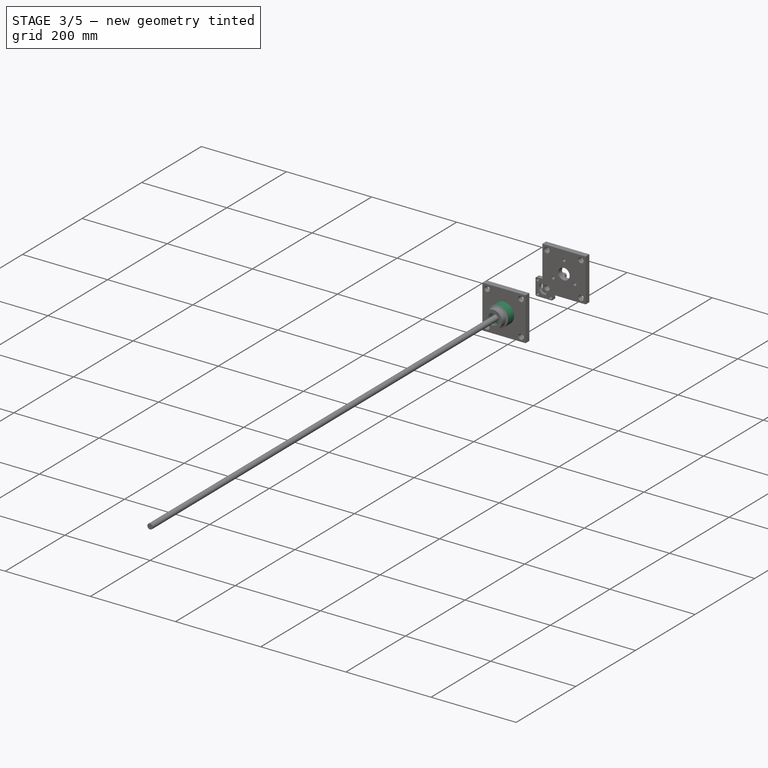
[diagram: stage 3 of 5 — iso view after this stage's code; geometry added in this stage tinted green]
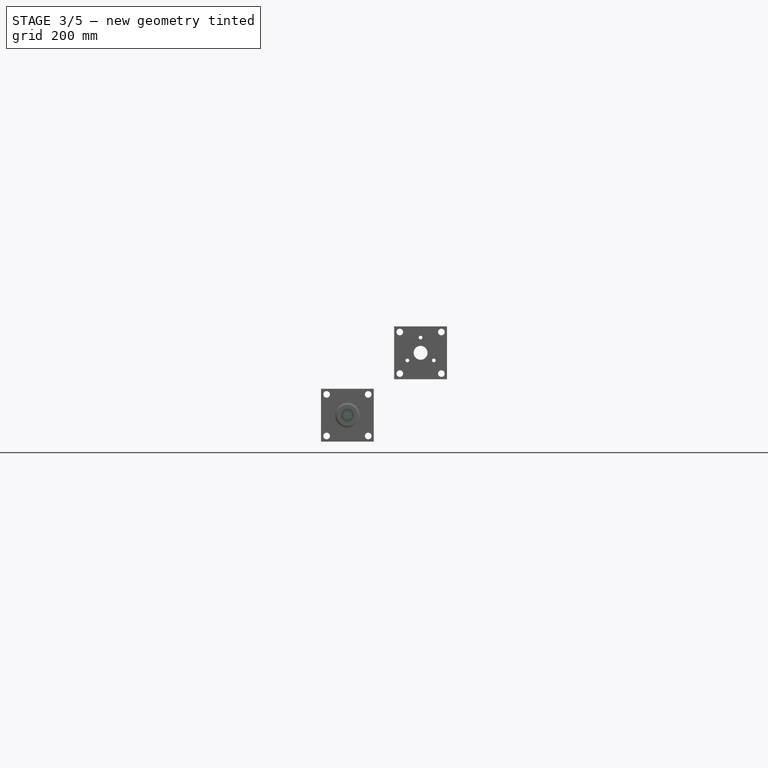
[diagram: stage 3 of 5 — front view after this stage's code; geometry added in this stage tinted green]
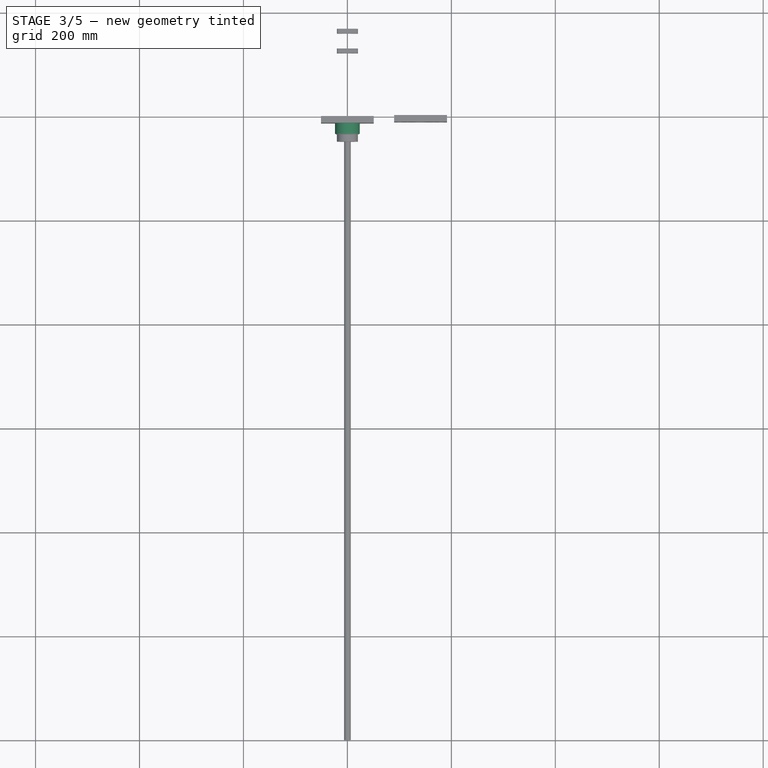
[diagram: stage 3 of 5 — top view after this stage's code; geometry added in this stage tinted green]
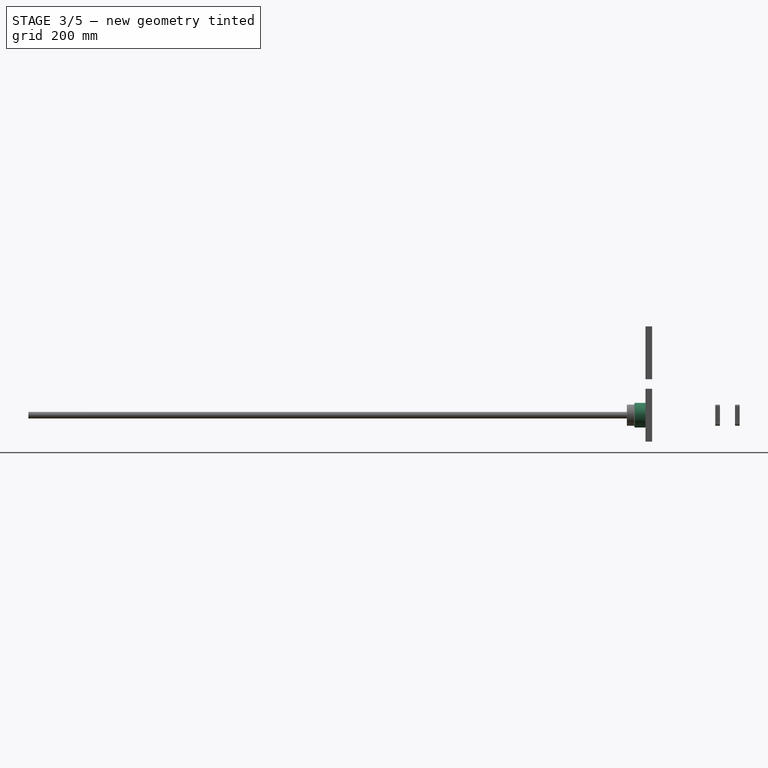
[diagram: stage 3 of 5 — right view after this stage's code; geometry added in this stage tinted green]
FEATURE [Sketcher::SketchObject] Sketch046
  FullyConstrained = true
  MapMode = 5
  Placement = pos=(0,0,0) rot=(1,0,0;1.5708rad)
  Support = -> [XZ_Plane061]
  sketch-geometry (1):
    g0: Circle CenterX=0 CenterY=0 CenterZ=0 NormalX=0 NormalY=0 NormalZ=1 AngleXU=0 Radius=14.2875
  constraints (2):
    c: Coincident(g0,g-1)
    c: Diameter(g0) = 28.575
FEATURE [PartDesign::Pad] Pad046
  Direction = (1,1,1)
  Length = 12.7
  Length2 = 100
  Placement = pos=(0,0,0) rot=(1,0,0;1.5708rad)
  Profile = -> Sketch046
  Type = 0
FEATURE [App::Part] Part012  label="CRDmount(simple)1"
  Group = -> [Body043,Body044,Cut034,Cut035,Cut036,Cut037,Cut038,Cut039,Chamfer,Body045,Chamfer001,Body046,Cut040,Chamfer002]
  Origin = -> Origin059
  Placement = pos=(0,30,0) rot=(1,0,0;3.14159rad)
FEATURE [Sketcher::SketchObject] Sketch047
  FullyConstrained = true
  MapMode = 5
  Placement = pos=(0,0,0) rot=(1,0,0;1.5708rad)
  Support = -> [XZ_Plane062]
  sketch-geometry (2):
    g0: Circle CenterX=0 CenterY=0 CenterZ=0 NormalX=0 NormalY=0 NormalZ=1 AngleXU=0 Radius=34.925
    g1: Circle CenterX=0 CenterY=0 CenterZ=0 NormalX=0 NormalY=0 NormalZ=1 AngleXU=0 Radius=9.525
  constraints (4):
    c: Coincident(g0,g-1)
    c: Coincident(g1,g0)
    c: Diameter(g1) = 19.05
    c: Diameter(g0) = 69.85
FEATURE [PartDesign::Pad] Pad047
  Direction = (1,1,1)
  Length = 12.7
  Length2 = 100
  Placement = pos=(0,0,0) rot=(1,0,0;1.5708rad)
  Profile = -> Sketch047
  Type = 0
FEATURE [PartDesign::Body] Body047
  Group = -> [Sketch047,Pad047]
  Origin = -> Origin063
  Tip = -> Pad047
FEATURE [Sketcher::SketchObject] Sketch048
  FullyConstrained = true
  MapMode = 5
  Placement = pos=(0,0,0) rot=(1,0,0;1.5708rad)
  Support = -> [XZ_Plane063]
  sketch-geometry (1):
    g0: Circle CenterX=0 CenterY=29.3687 CenterZ=0 NormalX=0 NormalY=0 NormalZ=1 AngleXU=0 Radius=3.57187
  constraints (3):
    c: PointOnObject(g0,g-2)
    c: DistanceY(g-1,g0) = 29.3687
    c: Diameter(g0) = 7.14375
FEATURE [PartDesign::Pad] Pad048
  Direction = (1,1,1)
  Length = 13
  Length2 = 100
  Placement = pos=(0,0,0) rot=(1,0,0;1.5708rad)
  Profile = -> Sketch048
  Type = 0
FEATURE [PartDesign::Body] Body049
  Group = -> [Sketch048,Pad048]
  Origin = -> Origin062
  Tip = -> Pad048
FEATURE [Part::Cut] Cut041
  Base = -> Body047
  Placement = pos=(0,0,0) rot=(0,1,0;1.0472rad)
  Tool = -> Body049
FEATURE [Part::Cut] Cut042
  Base = -> Cut041
  Placement = pos=(0,0,0) rot=(0,1,0;1.0472rad)
  Tool = -> Body049
FEATURE [Part::Cut] Cut043
  Base = -> Cut042
  Placement = pos=(0,0,0) rot=(0,1,0;1.0472rad)
  Tool = -> Body049
FEATURE [Part::Cut] Cut044
  Base = -> Cut043
  Placement = pos=(0,0,0) rot=(0,1,0;1.0472rad)
  Tool = -> Body049
FEATURE [Part::Cut] Cut045
  Base = -> Cut044
  Placement = pos=(0,0,0) rot=(0,1,0;1.0472rad)
  Tool = -> Body049
FEATURE [Part::Cut] Cut046
  Base = -> Cut045
  Tool = -> Body049
FEATURE [Part::Chamfer] Chamfer005
  Base = -> Cut046
  Edges = 1 edges r=1.59: [Edge3]
FEATURE [Sketcher::SketchObject] Sketch049
  FullyConstrained = true
  MapMode = 5
  Placement = pos=(0,0,0) rot=(1,0,0;1.5708rad)
  Support = -> [XZ_Plane066]
  sketch-geometry (2):
    g0: Circle CenterX=0 CenterY=0 CenterZ=0 NormalX=0 NormalY=0 NormalZ=1 AngleXU=0 Radius=6.35
    g1: Circle CenterX=0 CenterY=0 CenterZ=0 NormalX=0 NormalY=0 NormalZ=1 AngleXU=0 Radius=23.8125
  constraints (4):
    c: Coincident(g0,g-1)
    c: Coincident(g1,g0)
    c: Diameter(g1) = 47.625
    c: Diameter(g0) = 12.7
FEATURE [PartDesign::Pad] Pad050
  Direction = (1,1,1)
  Length = 25.4
  Length2 = 100
  Placement = pos=(0,0,0) rot=(1,0,0;1.5708rad)
  Profile = -> Sketch049
  Type = 0
FEATURE [PartDesign::Body] Body050
  Group = -> [Sketch049,Pad050]
  Origin = -> Origin066
  Tip = -> Pad050
FEATURE [Part::Chamfer] Chamfer004
  Base = -> Chamfer005
  Edges = 1 edges r=0.79: [Edge3]
FEATURE [Sketcher::SketchObject] Sketch050
  FullyConstrained = true
  MapMode = 5
  Placement = pos=(0,0,0) rot=(1,0,0;1.5708rad)
  Support = -> [XZ_Plane064]
  sketch-geometry (1):
    g0: Circle CenterX=0 CenterY=0 CenterZ=0 NormalX=0 NormalY=0 NormalZ=1 AngleXU=0 Radius=14.2875
  constraints (2):
    c: Coincident(g0,g-1)
    c: Diameter(g0) = 28.575
FEATURE [PartDesign::Pad] Pad049
  Direction = (1,1,1)
  Length = 12.7
  Length2 = 100
  Placement = pos=(0,0,0) rot=(1,0,0;1.5708rad)
  Profile = -> Sketch050
  Type = 0
FEATURE [PartDesign::Body] Body048
  Group = -> [Sketch050,Pad049]
  Origin = -> Origin064
  Tip = -> Pad049
FEATURE [Part::Cut] Cut047
  Base = -> Body050
  Tool = -> Body048
FEATURE [Part::Chamfer] Chamfer003
  Base = -> Cut047
  Edges = 1 edges: [Edge3 r1=4.76 r2=11.11]
  Placement = pos=(0,-12.7,0) rot=(0,0,1;0rad)
FEATURE [PartDesign::Body] Body039
  Group = -> [Sketch040,Pad037]
  Origin = -> Origin052
  Tip = -> Pad037
FEATURE [Part::Cut] Cut028
  Base = -> Body039
  Placement = pos=(0,0,0) rot=(0,1,0;1.0472rad)
  Tool = -> Body040
FEATURE [Part::Cut] Cut027
  Base = -> Cut028
  Placement = pos=(0,0,0) rot=(0,1,0;1.0472rad)
  Tool = -> Body040
FEATURE [Part::Cut] Cut031
  Base = -> Cut027
  Placement = pos=(0,0,0) rot=(0,1,0;1.0472rad)
  Tool = -> Body040
FEATURE [Part::Cut] Cut032
  Base = -> Cut031
  Placement = pos=(0,0,0) rot=(0,1,0;1.0472rad)
  Tool = -> Body040
FEATURE [Part::Cut] Cut029
  Base = -> Cut032
  Placement = pos=(0,0,0) rot=(0,1,0;1.0472rad)
  Tool = -> Body040
FEATURE [Part::Cut] Cut030
  Base = -> Cut029
  Tool = -> Body040
FEATURE [PartDesign::Body] Body037
  Group = -> [Sketch037,Pad041]
  Origin = -> Origin055
  Placement = pos=(0,-29.37,0) rot=(0,0,1;0rad)
  Tip = -> Pad041
FEATURE [Part::MultiFuse] Fusion002
  Shapes = -> [Cut030,Body036,Body037]
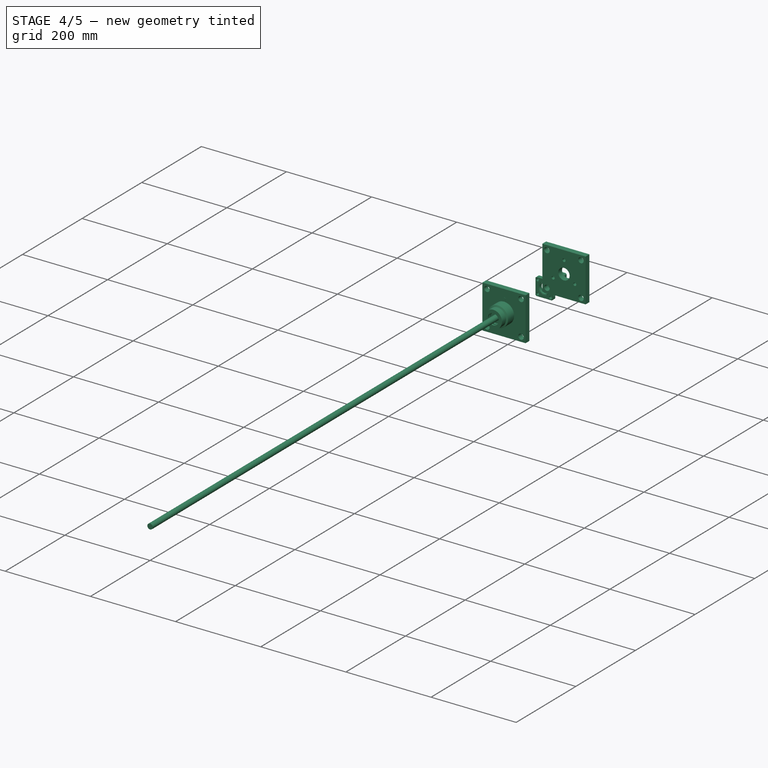
[diagram: stage 4 of 5 — iso view after this stage's code; geometry added in this stage tinted green]
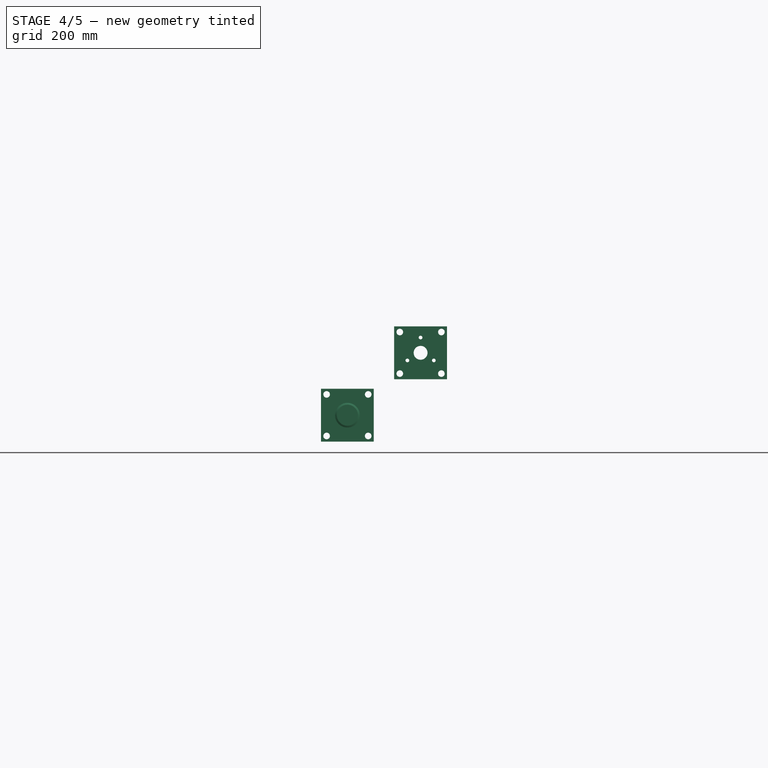
[diagram: stage 4 of 5 — front view after this stage's code; geometry added in this stage tinted green]
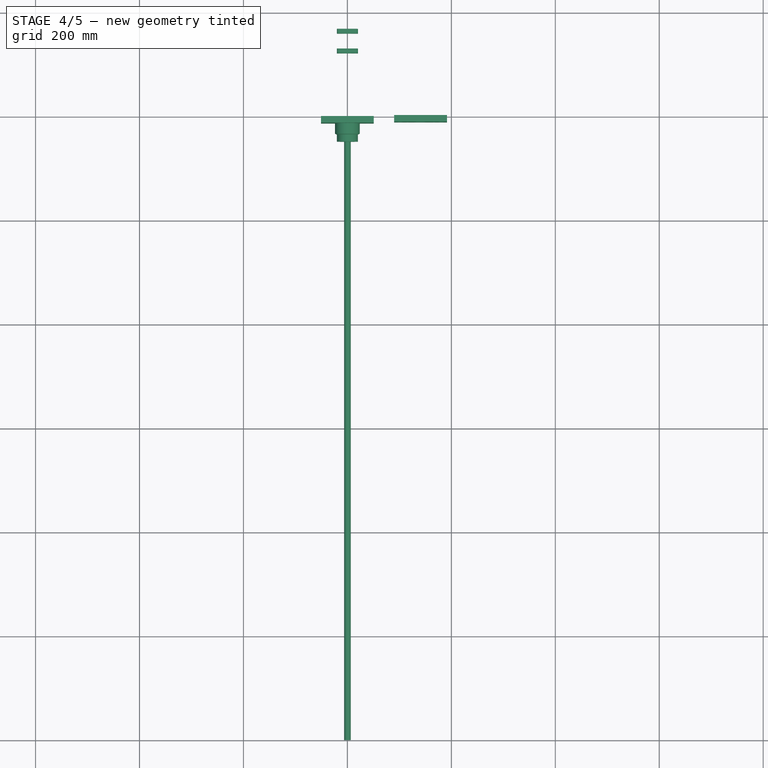
[diagram: stage 4 of 5 — top view after this stage's code; geometry added in this stage tinted green]
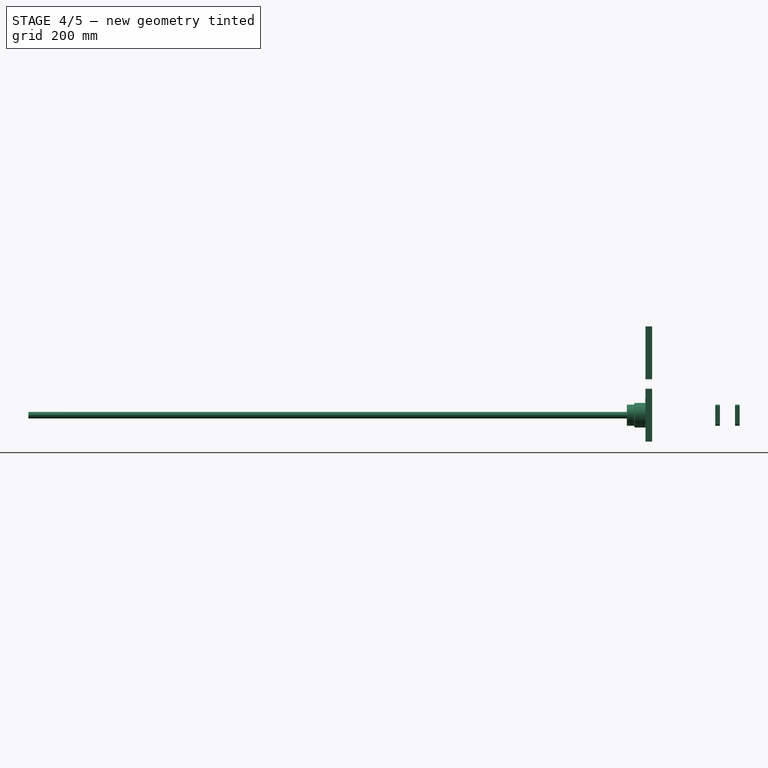
[diagram: stage 4 of 5 — right view after this stage's code; geometry added in this stage tinted green]
FEATURE [App::Part] Part007  label="Cavity"
  Group = -> [Body005,Body006,Body007,Body008,Body009,Body010,Body011,Cut,Cut001,Cut002,Body012,Cut005,Cut004,Cut003,Fusion]
  Origin = -> Origin014
FEATURE [Sketcher::SketchObject] Sketch014
  FullyConstrained = true
  MapMode = 5
  Placement = pos=(0,0,0) rot=(1,0,0;1.5708rad)
  Support = -> [XZ_Plane025]
  sketch-geometry (1):
    g0: Circle CenterX=0 CenterY=29.3687 CenterZ=0 NormalX=0 NormalY=0 NormalZ=1 AngleXU=0 Radius=3.57187
  constraints (3):
    c: PointOnObject(g0,g-2)
    c: DistanceY(g-1,g0) = 29.3687
    c: Diameter(g0) = 7.14375
FEATURE [PartDesign::Pad] Pad014
  Direction = (1,1,1)
  Length = 13
  Length2 = 100
  Placement = pos=(0,0,0) rot=(1,0,0;1.5708rad)
  Profile = -> Sketch014
  Type = 0
FEATURE [PartDesign::Body] Body014
  Group = -> [Sketch014,Pad014]
  Origin = -> Origin025
  Tip = -> Pad014
FEATURE [Sketcher::SketchObject] Sketch013
  FullyConstrained = true
  MapMode = 5
  Placement = pos=(0,0,0) rot=(1,0,0;1.5708rad)
  Support = -> [XZ_Plane024]
  sketch-geometry (2):
    g0: Circle CenterX=0 CenterY=0 CenterZ=0 NormalX=0 NormalY=0 NormalZ=1 AngleXU=0 Radius=34.925
    g1: Circle CenterX=0 CenterY=0 CenterZ=0 NormalX=0 NormalY=0 NormalZ=1 AngleXU=0 Radius=14.2875
  constraints (4):
    c: Coincident(g0,g-1)
    c: Coincident(g1,g0)
    c: Diameter(g1) = 28.575
    c: Diameter(g0) = 69.85
FEATURE [PartDesign::Pad] Pad013
  Direction = (1,1,1)
  Length = 12.7
  Length2 = 100
  Placement = pos=(0,0,0) rot=(1,0,0;1.5708rad)
  Profile = -> Sketch013
  Type = 0
FEATURE [Sketcher::SketchObject] Sketch015
  FullyConstrained = true
  MapMode = 5
  Placement = pos=(0,0,0) rot=(1,0,0;1.5708rad)
  Support = -> [XZ_Plane026]
  sketch-geometry (2):
    g0: Circle CenterX=0 CenterY=0 CenterZ=0 NormalX=0 NormalY=0 NormalZ=1 AngleXU=0 Radius=12.7
    g1: Circle CenterX=0 CenterY=0 CenterZ=0 NormalX=0 NormalY=0 NormalZ=1 AngleXU=0 Radius=14.2875
  constraints (4):
    c: Coincident(g0,g-1)
    c: Coincident(g1,g0)
    c: Diameter(g0) = 25.4
    c: Diameter(g1) = 28.575
FEATURE [PartDesign::Pad] Pad015
  Direction = (1,1,1)
  Length = 29.21
  Length2 = 100
  Placement = pos=(0,0,0) rot=(1,0,0;1.5708rad)
  Profile = -> Sketch015
  Type = 0
FEATURE [PartDesign::Body] Body015
  Group = -> [Sketch015,Pad015]
  Origin = -> Origin026
  Placement = pos=(0,-0.16,0) rot=(0,0,1;0rad)
  Tip = -> Pad015
FEATURE [Sketcher::SketchObject] Sketch016
  FullyConstrained = true
  MapMode = 5
  Placement = pos=(0,0,0) rot=(1,0,0;1.5708rad)
  Support = -> [XZ_Plane027]
  sketch-geometry (2):
    g0: Circle CenterX=0 CenterY=0 CenterZ=0 NormalX=0 NormalY=0 NormalZ=1 AngleXU=0 Radius=12.7
    g1: Circle CenterX=0 CenterY=0 CenterZ=0 NormalX=0 NormalY=0 NormalZ=1 AngleXU=0 Radius=16.6687
  constraints (4):
    c: Coincident(g0,g-1)
    c: Coincident(g1,g0)
    c: Diameter(g0) = 25.4
    c: Diameter(g1) = 33.3375
FEATURE [PartDesign::Pad] Pad016
  Direction = (1,1,1)
  Length = 12.7
  Length2 = 100
  Placement = pos=(0,0,0) rot=(1,0,0;1.5708rad)
  Profile = -> Sketch016
  Type = 0
FEATURE [Sketcher::SketchObject] Sketch017
  FullyConstrained = true
  MapMode = 5
  Placement = pos=(0,0,0) rot=(1,0,0;1.5708rad)
  Support = -> [XZ_Plane028]
  sketch-geometry (2):
    g0: Circle CenterX=0 CenterY=0 CenterZ=0 NormalX=0 NormalY=0 NormalZ=1 AngleXU=0 Radius=12.7
    g1: Circle CenterX=0 CenterY=0 CenterZ=0 NormalX=0 NormalY=0 NormalZ=1 AngleXU=0 Radius=16.6687
  constraints (4):
    c: Coincident(g0,g-1)
    c: Coincident(g1,g0)
    c: Diameter(g0) = 25.4
    c: Diameter(g1) = 33.3375
FEATURE [PartDesign::Pad] Pad017
  Direction = (1,1,1)
  Length = 3.175
  Length2 = 100
  Placement = pos=(0,0,0) rot=(1,0,0;1.5708rad)
  Profile = -> Sketch017
  Type = 0
FEATURE [PartDesign::Body] Body017
  Group = -> [Sketch017,Pad017]
  Origin = -> Origin028
  Placement = pos=(0,-42.07,0) rot=(0,0,1;0rad)
  Tip = -> Pad017
FEATURE [Sketcher::SketchObject] Sketch018
  FullyConstrained = true
  MapMode = 5
  Placement = pos=(0,0,0) rot=(1,0,0;1.5708rad)
  Support = -> [XZ_Plane029]
  sketch-geometry (2):
    g0: Circle CenterX=0 CenterY=0 CenterZ=0 NormalX=0 NormalY=0 NormalZ=1 AngleXU=0 Radius=20.2406
    g1: Circle CenterX=0 CenterY=0 CenterZ=0 NormalX=0 NormalY=0 NormalZ=1 AngleXU=0 Radius=12.7
  constraints (4):
    c: Coincident(g0,g-1)
    c: Coincident(g1,g0)
    c: Diameter(g0) = 40.4813
    c: Diameter(g1) = 25.4
FEATURE [PartDesign::Pad] Pad018
  Direction = (1,1,1)
  Length = 19.05
  Length2 = 100
  Placement = pos=(0,0,0) rot=(1,0,0;1.5708rad)
  Profile = -> Sketch018
  Type = 0
FEATURE [PartDesign::Body] Body018
  Group = -> [Sketch018,Pad018]
  Origin = -> Origin029
  Tip = -> Pad018
FEATURE [Sketcher::SketchObject] Sketch019
  FullyConstrained = true
  MapMode = 5
  Placement = pos=(0,0,0) rot=(1,0,0;1.5708rad)
  Support = -> [XZ_Plane030]
  sketch-geometry (1):
    g0: Circle CenterX=0 CenterY=0 CenterZ=0 NormalX=0 NormalY=0 NormalZ=1 AngleXU=0 Radius=16.6687
  constraints (2):
    c: Coincident(g0,g-1)
    c: Diameter(g0) = 33.3375
FEATURE [PartDesign::Pad] Pad019
  Direction = (1,1,1)
  Length = 15.875
  Length2 = 100
  Placement = pos=(0,0,0) rot=(1,0,0;1.5708rad)
  Profile = -> Sketch019
  Type = 0
FEATURE [PartDesign::Body] Body019
  Group = -> [Sketch019,Pad019]
  Origin = -> Origin030
  Tip = -> Pad019
FEATURE [Part::Cut] Cut012
  Base = -> Body018
  Placement = pos=(0,-29.37,0) rot=(0,0,1;0rad)
  Tool = -> Body019
FEATURE [App::Part] Part008  label="CFQuick1"
  Group = -> [Body014,Cut010,Body013,Cut006,Cut008,Cut009,Cut007,Cut011,Body015,Body016,Fusion001,Body017,Body018,Body019,Cut012]
  Origin = -> Origin023
  Placement = pos=(0,30,0) rot=(0,0,1;0rad)
FEATURE [Sketcher::SketchObject] Sketch043
  FullyConstrained = true
  MapMode = 5
  Placement = pos=(0,0,0) rot=(1,0,0;1.5708rad)
  Support = -> [XZ_Plane057]
  sketch-geometry (2):
    g0: Circle CenterX=0 CenterY=0 CenterZ=0 NormalX=0 NormalY=0 NormalZ=1 AngleXU=0 Radius=34.925
    g1: Circle CenterX=0 CenterY=0 CenterZ=0 NormalX=0 NormalY=0 NormalZ=1 AngleXU=0 Radius=9.525
  constraints (4):
    c: Coincident(g0,g-1)
    c: Coincident(g1,g0)
    c: Diameter(g1) = 19.05
    c: Diameter(g0) = 69.85
FEATURE [PartDesign::Pad] Pad043
  Direction = (1,1,1)
  Length = 12.7
  Length2 = 100
  Placement = pos=(0,0,0) rot=(1,0,0;1.5708rad)
  Profile = -> Sketch043
  Type = 0
FEATURE [PartDesign::Body] Body043
  Group = -> [Sketch043,Pad043]
  Origin = -> Origin057
  Tip = -> Pad043
FEATURE [Sketcher::SketchObject] Sketch044
  FullyConstrained = true
  MapMode = 5
  Placement = pos=(0,0,0) rot=(1,0,0;1.5708rad)
  Support = -> [XZ_Plane058]
  sketch-geometry (1):
    g0: Circle CenterX=0 CenterY=29.3687 CenterZ=0 NormalX=0 NormalY=0 NormalZ=1 AngleXU=0 Radius=3.57187
  constraints (3):
    c: PointOnObject(g0,g-2)
    c: DistanceY(g-1,g0) = 29.3687
    c: Diameter(g0) = 7.14375
FEATURE [PartDesign::Pad] Pad044
  Direction = (1,1,1)
  Length = 13
  Length2 = 100
  Placement = pos=(0,0,0) rot=(1,0,0;1.5708rad)
  Profile = -> Sketch044
  Type = 0
FEATURE [PartDesign::Body] Body044
  Group = -> [Sketch044,Pad044]
  Origin = -> Origin058
  Tip = -> Pad044
FEATURE [Part::Cut] Cut034
  Base = -> Body043
  Placement = pos=(0,0,0) rot=(0,1,0;1.0472rad)
  Tool = -> Body044
FEATURE [Part::Cut] Cut035
  Base = -> Cut034
  Placement = pos=(0,0,0) rot=(0,1,0;1.0472rad)
  Tool = -> Body044
FEATURE [Part::Cut] Cut036
  Base = -> Cut035
  Placement = pos=(0,0,0) rot=(0,1,0;1.0472rad)
  Tool = -> Body044
FEATURE [Part::Cut] Cut037
  Base = -> Cut036
  Placement = pos=(0,0,0) rot=(0,1,0;1.0472rad)
  Tool = -> Body044
FEATURE [Part::Cut] Cut038
  Base = -> Cut037
  Placement = pos=(0,0,0) rot=(0,1,0;1.0472rad)
  Tool = -> Body044
FEATURE [Part::Cut] Cut039
  Base = -> Cut038
  Tool = -> Body044
FEATURE [Part::Chamfer] Chamfer
  Base = -> Cut039
  Edges = 1 edges r=1.59: [Edge3]
FEATURE [Sketcher::SketchObject] Sketch045
  FullyConstrained = true
  MapMode = 5
  Placement = pos=(0,0,0) rot=(1,0,0;1.5708rad)
  Support = -> [XZ_Plane060]
  sketch-geometry (2):
    g0: Circle CenterX=0 CenterY=0 CenterZ=0 NormalX=0 NormalY=0 NormalZ=1 AngleXU=0 Radius=6.35
    g1: Circle CenterX=0 CenterY=0 CenterZ=0 NormalX=0 NormalY=0 NormalZ=1 AngleXU=0 Radius=23.8125
  constraints (4):
    c: Coincident(g0,g-1)
    c: Coincident(g1,g0)
    c: Diameter(g1) = 47.625
    c: Diameter(g0) = 12.7
FEATURE [PartDesign::Pad] Pad045
  Direction = (1,1,1)
  Length = 25.4
  Length2 = 100
  Placement = pos=(0,0,0) rot=(1,0,0;1.5708rad)
  Profile = -> Sketch045
  Type = 0
FEATURE [PartDesign::Body] Body045
  Group = -> [Sketch045,Pad045]
  Origin = -> Origin060
  Tip = -> Pad045
FEATURE [Part::Chamfer] Chamfer001
  Base = -> Chamfer
  Edges = 1 edges r=0.79: [Edge3]
FEATURE [PartDesign::Body] Body046
  Group = -> [Sketch046,Pad046]
  Origin = -> Origin061
  Tip = -> Pad046
FEATURE [Part::Cut] Cut040
  Base = -> Body045
  Tool = -> Body046
FEATURE [Part::Chamfer] Chamfer002
  Base = -> Cut040
  Edges = 1 edges: [Edge3 r1=4.76 r2=11.11]
  Placement = pos=(0,-12.7,0) rot=(0,0,1;0rad)
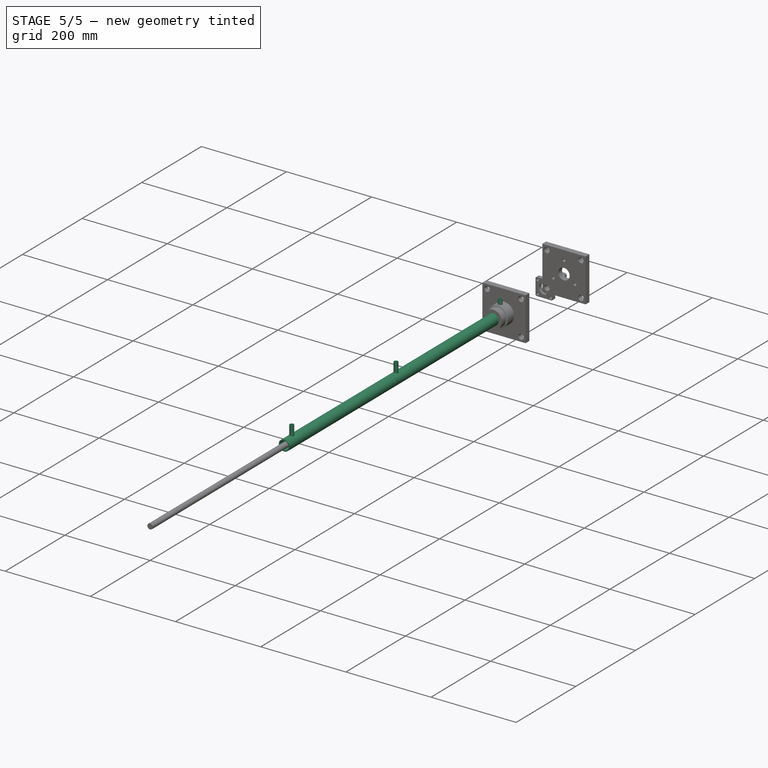
[diagram: stage 5 of 5 — iso view after this stage's code; geometry added in this stage tinted green]
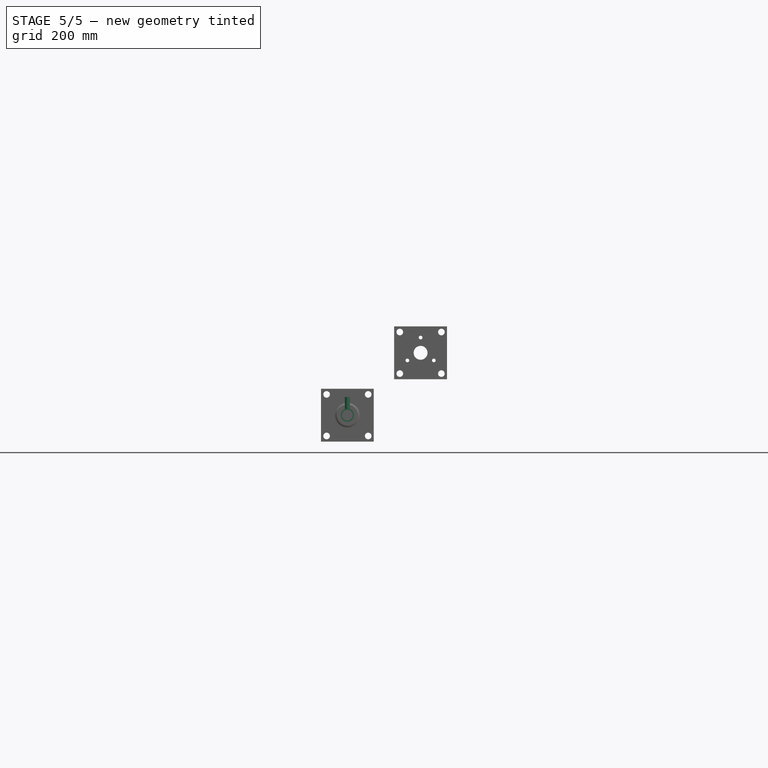
[diagram: stage 5 of 5 — front view after this stage's code; geometry added in this stage tinted green]
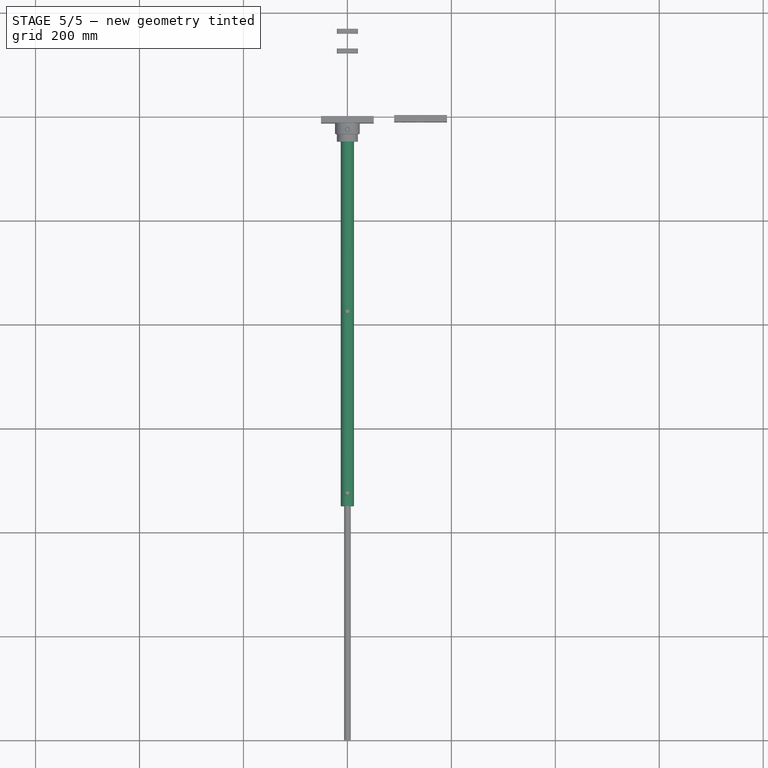
[diagram: stage 5 of 5 — top view after this stage's code; geometry added in this stage tinted green]
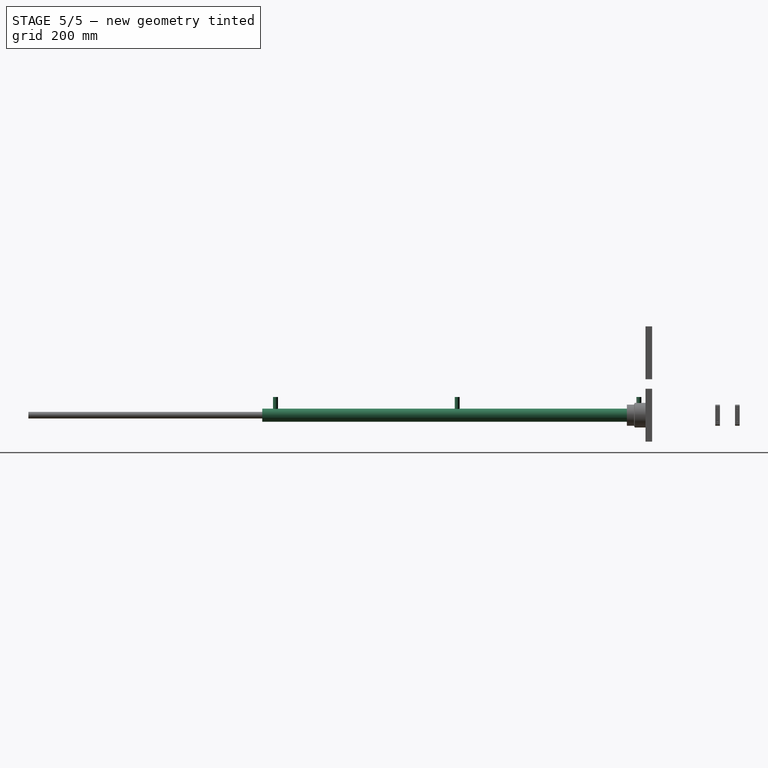
[diagram: stage 5 of 5 — right view after this stage's code; geometry added in this stage tinted green]
FEATURE [Sketcher::SketchObject] Sketch005
  FullyConstrained = true
  MapMode = 2
  Placement = pos=(0,0,0) rot=(1,0,0;1.5708rad)
  sketch-geometry (2):
    g0: Circle CenterX=0 CenterY=0 CenterZ=0 NormalX=0 NormalY=0 NormalZ=1 AngleXU=0 Radius=12.7
    g1: Circle CenterX=0 CenterY=0 CenterZ=0 NormalX=0 NormalY=0 NormalZ=1 AngleXU=0 Radius=10.3187
  constraints (4):
    c: Coincident(g0,g-1)
    c: Coincident(g1,g0)
    c: Diameter(g0) = 25.4
    c: Diameter(g1) = 20.6375
FEATURE [PartDesign::Pad] Pad005
  Direction = (1,1,1)
  Length = 750
  Length2 = 100
  Placement = pos=(0,0,0) rot=(1,0,0;1.5708rad)
  Profile = -> Sketch005
  Type = 0
FEATURE [PartDesign::Body] Body005
  Group = -> [Sketch005,Pad005]
  Origin = -> Origin015
  Tip = -> Pad005
FEATURE [Sketcher::SketchObject] Sketch006
  FullyConstrained = true
  MapMode = 5
  Support = -> [XY_Plane016]
  sketch-geometry (2):
    g0: Circle CenterX=0 CenterY=0 CenterZ=0 NormalX=0 NormalY=0 NormalZ=1 AngleXU=0 Radius=4.7625
    g1: Circle CenterX=0 CenterY=0 CenterZ=0 NormalX=0 NormalY=0 NormalZ=1 AngleXU=0 Radius=3.8695
  constraints (4):
    c: Coincident(g0,g-1)
    c: Coincident(g1,g0)
    c: Diameter(g0) = 9.525
    c: Diameter(g1) = 7.739
FEATURE [PartDesign::Pad] Pad006
  Direction = (1,1,1)
  Length = 25.4
  Length2 = 100
  Profile = -> Sketch006
  Type = 0
FEATURE [PartDesign::Body] Body006
  Group = -> [Sketch006,Pad006]
  Origin = -> Origin016
  Placement = pos=(0,-25.4,9.55) rot=(0,0,1;0rad)
  Tip = -> Pad006
FEATURE [Sketcher::SketchObject] Sketch007
  FullyConstrained = true
  MapMode = 5
  Support = -> [XY_Plane017]
  sketch-geometry (2):
    g0: Circle CenterX=0 CenterY=0 CenterZ=0 NormalX=0 NormalY=0 NormalZ=1 AngleXU=0 Radius=4.7625
    g1: Circle CenterX=0 CenterY=0 CenterZ=0 NormalX=0 NormalY=0 NormalZ=1 AngleXU=0 Radius=3.8695
  constraints (4):
    c: Coincident(g0,g-1)
    c: Coincident(g1,g0)
    c: Diameter(g0) = 9.525
    c: Diameter(g1) = 7.739
FEATURE [PartDesign::Pad] Pad007
  Direction = (1,1,1)
  Length = 25.4
  Length2 = 100
  Profile = -> Sketch007
  Type = 0
FEATURE [PartDesign::Body] Body007
  Group = -> [Sketch007,Pad007]
  Origin = -> Origin017
  Placement = pos=(0,-375,9.55) rot=(0,0,1;0rad)
  Tip = -> Pad007
FEATURE [Sketcher::SketchObject] Sketch008
  FullyConstrained = true
  MapMode = 5
  Support = -> [XY_Plane018]
  sketch-geometry (2):
    g0: Circle CenterX=0 CenterY=0 CenterZ=0 NormalX=0 NormalY=0 NormalZ=1 AngleXU=0 Radius=4.7625
    g1: Circle CenterX=0 CenterY=0 CenterZ=0 NormalX=0 NormalY=0 NormalZ=1 AngleXU=0 Radius=3.8695
  constraints (4):
    c: Coincident(g0,g-1)
    c: Coincident(g1,g0)
    c: Diameter(g0) = 9.525
    c: Diameter(g1) = 7.739
FEATURE [PartDesign::Pad] Pad008
  Direction = (1,1,1)
  Length = 25.4
  Length2 = 100
  Profile = -> Sketch008
  Type = 0
FEATURE [PartDesign::Body] Body008
  Group = -> [Sketch008,Pad008]
  Origin = -> Origin018
  Placement = pos=(0,-724.6,9.55) rot=(0,0,1;0rad)
  Tip = -> Pad008
FEATURE [Sketcher::SketchObject] Sketch009
  FullyConstrained = true
  MapMode = 5
  Support = -> [XY_Plane020]
  sketch-geometry (1):
    g0: Circle CenterX=0 CenterY=0 CenterZ=0 NormalX=0 NormalY=0 NormalZ=1 AngleXU=0 Radius=4.7625
  constraints (2):
    c: Coincident(g0,g-1)
    c: Diameter(g0) = 9.525
FEATURE [PartDesign::Pad] Pad009
  Direction = (1,1,1)
  Length = 25.4
  Length2 = 100
  Profile = -> Sketch009
  Type = 0
FEATURE [PartDesign::Body] Body009
  Group = -> [Sketch009,Pad009]
  Origin = -> Origin019
  Placement = pos=(0,-25.4,0) rot=(0,0,1;0rad)
  Tip = -> Pad009
FEATURE [Sketcher::SketchObject] Sketch010
  FullyConstrained = true
  MapMode = 5
  Support = -> [XY_Plane021]
  sketch-geometry (1):
    g0: Circle CenterX=0 CenterY=0 CenterZ=0 NormalX=0 NormalY=0 NormalZ=1 AngleXU=0 Radius=4.7625
  constraints (2):
    c: Coincident(g0,g-1)
    c: Diameter(g0) = 9.525
FEATURE [PartDesign::Pad] Pad010
  Direction = (1,1,1)
  Length = 25.4
  Length2 = 100
  Profile = -> Sketch010
  Type = 0
FEATURE [PartDesign::Body] Body010
  Group = -> [Sketch010,Pad010]
  Origin = -> Origin020
  Placement = pos=(0,-375,0) rot=(0,0,1;0rad)
  Tip = -> Pad010
FEATURE [Sketcher::SketchObject] Sketch011
  FullyConstrained = true
  MapMode = 5
  Support = -> [XY_Plane022]
  sketch-geometry (1):
    g0: Circle CenterX=0 CenterY=0 CenterZ=0 NormalX=0 NormalY=0 NormalZ=1 AngleXU=0 Radius=4.7625
  constraints (2):
    c: Coincident(g0,g-1)
    c: Diameter(g0) = 9.525
FEATURE [PartDesign::Pad] Pad011
  Direction = (1,1,1)
  Length = 25.4
  Length2 = 100
  Profile = -> Sketch011
  Type = 0
FEATURE [PartDesign::Body] Body011
  Group = -> [Sketch011,Pad011]
  Origin = -> Origin021
  Placement = pos=(0,-724.6,0) rot=(0,0,1;0rad)
  Tip = -> Pad011
FEATURE [Part::Cut] Cut
  Base = -> Body005
  Tool = -> Body009
FEATURE [Part::Cut] Cut001
  Base = -> Cut
  Tool = -> Body010
FEATURE [Part::Cut] Cut002
  Base = -> Cut001
  Tool = -> Body011
FEATURE [Sketcher::SketchObject] Sketch012
  FullyConstrained = true
  MapMode = 5
  Placement = pos=(0,0,0) rot=(1,0,0;1.5708rad)
  Support = -> [XZ_Plane022]
  sketch-geometry (1):
    g0: Circle CenterX=0 CenterY=0 CenterZ=0 NormalX=0 NormalY=0 NormalZ=1 AngleXU=0 Radius=10.3187
  constraints (2):
    c: Coincident(g0,g-1)
    c: Diameter(g0) = 20.6375
FEATURE [PartDesign::Pad] Pad012
  Direction = (1,1,1)
  Length = 750
  Length2 = 100
  Placement = pos=(0,0,0) rot=(1,0,0;1.5708rad)
  Profile = -> Sketch012
  Type = 0
FEATURE [PartDesign::Body] Body012
  Group = -> [Sketch012,Pad012]
  Origin = -> Origin022
  Tip = -> Pad012
FEATURE [Part::Cut] Cut005
  Base = -> Body008
  Tool = -> Body012
FEATURE [Part::Cut] Cut004
  Base = -> Body007
  Tool = -> Body012
FEATURE [Part::Cut] Cut003
  Base = -> Body006
  Tool = -> Body012
FEATURE [Part::MultiFuse] Fusion
  Shapes = -> [Cut002,Cut005,Cut004,Cut003]
FEATURE [PartDesign::Body] Body013
  Group = -> [Sketch013,Pad013]
  Origin = -> Origin024
  Tip = -> Pad013
FEATURE [Part::Cut] Cut006
  Base = -> Body013
  Placement = pos=(0,0,0) rot=(0,1,0;1.0472rad)
  Tool = -> Body014
FEATURE [Part::Cut] Cut007
  Base = -> Cut006
  Placement = pos=(0,0,0) rot=(0,1,0;1.0472rad)
  Tool = -> Body014
FEATURE [Part::Cut] Cut008
  Base = -> Cut007
  Placement = pos=(0,0,0) rot=(0,1,0;1.0472rad)
  Tool = -> Body014
FEATURE [Part::Cut] Cut009
  Base = -> Cut008
  Placement = pos=(0,0,0) rot=(0,1,0;1.0472rad)
  Tool = -> Body014
FEATURE [Part::Cut] Cut010
  Base = -> Cut009
  Placement = pos=(0,0,0) rot=(0,1,0;1.0472rad)
  Tool = -> Body014
FEATURE [Part::Cut] Cut011
  Base = -> Cut010
  Tool = -> Body014
FEATURE [PartDesign::Body] Body016
  Group = -> [Sketch016,Pad016]
  Origin = -> Origin027
  Placement = pos=(0,-29.37,0) rot=(0,0,1;0rad)
  Tip = -> Pad016
FEATURE [Part::MultiFuse] Fusion001
  Shapes = -> [Cut011,Body015,Body016]
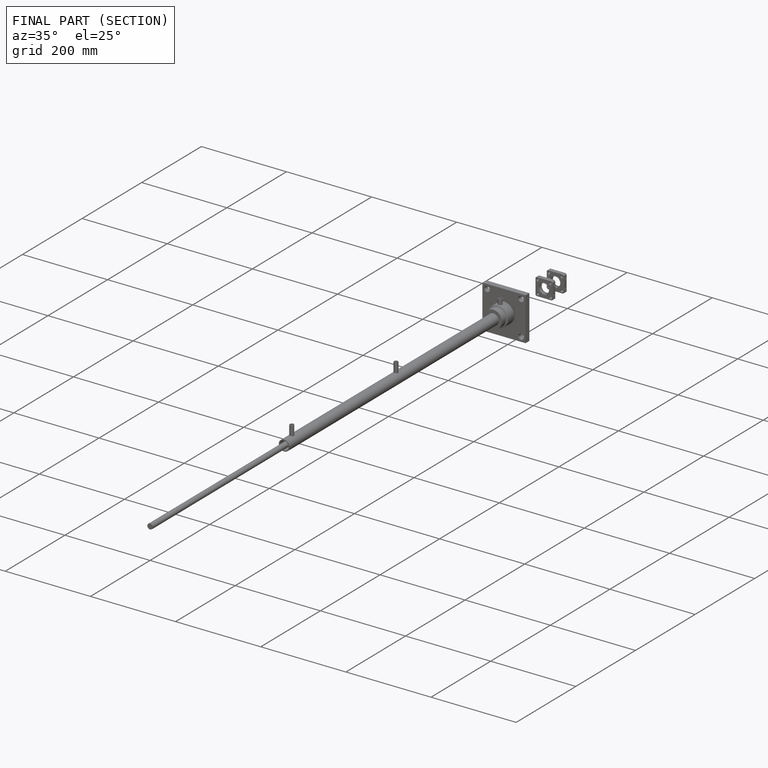
[diagram: finished part — half-section view (interior)]
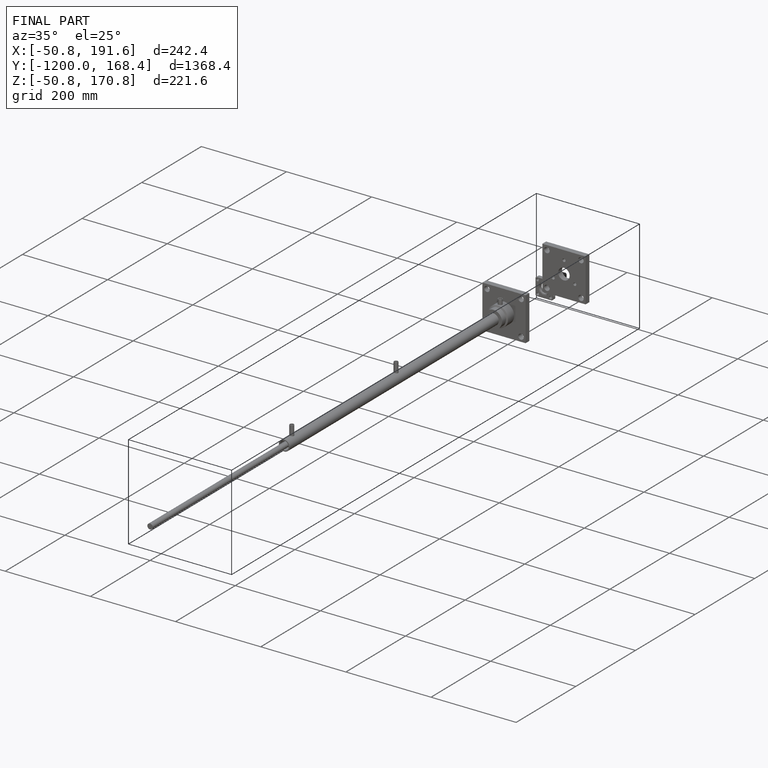
[diagram: finished part — iso view with bounding-box wireframe]
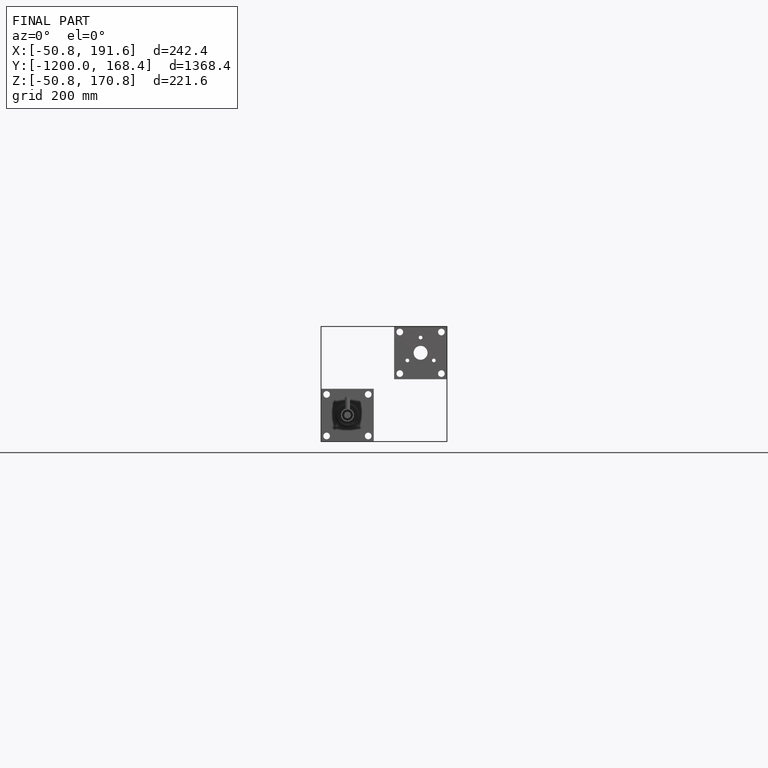
[diagram: finished part — front view with bounding-box wireframe]
